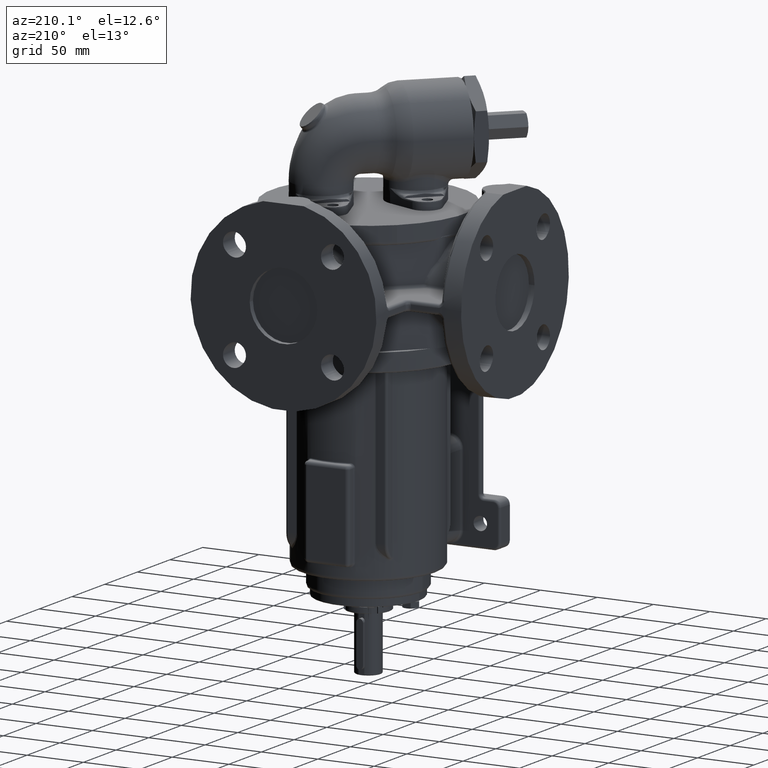
[diagram: clean part render]
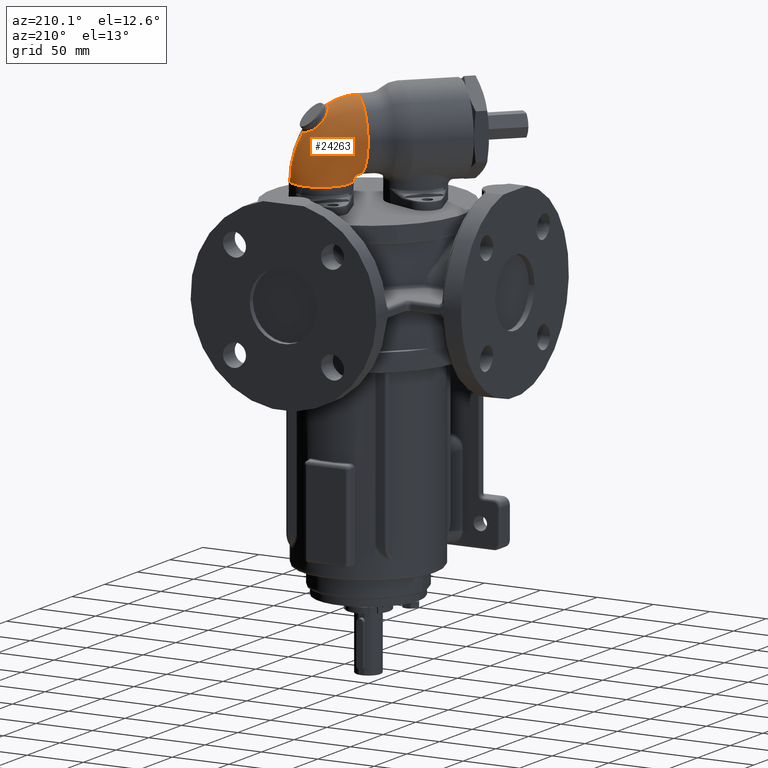
[diagram: same view with one face highlighted and labeled with its STEP entity id]
A machine part, auxiliary view. The second image highlights one B-rep face of the part: STEP entity #24263.
In plain terms, the highlighted face is a freeform B-spline surface patch.
Its self-contained STEP definition (entity closure, byte-faithful):
#3086=CARTESIAN_POINT('',(3.688014420872E1,3.688014375132E1,1.648450879329E2));
#3087=CARTESIAN_POINT('',(3.718151890918E1,3.718151845178E1,1.641295530669E2));
#3088=CARTESIAN_POINT('',(3.818970341616E1,3.818970395164E1,1.616318557733E2));
#3089=CARTESIAN_POINT('',(3.973962154826E1,3.973962135709E1,1.571622028E2));
#3090=CARTESIAN_POINT('',(4.134432181748E1,4.134432186871E1,1.512977116788E2));
#3091=CARTESIAN_POINT('',(4.260873733230E1,4.260873731857E1,1.451895897013E2));
#3092=CARTESIAN_POINT('',(4.352069088406E1,4.352069088776E1,1.388966617087E2));
#3093=CARTESIAN_POINT('',(4.407139991414E1,4.407139991308E1,1.324795309822E2));
#3094=CARTESIAN_POINT('',(4.419417382416E1,4.419417382416E1,1.281598449493E2));
#3095=CARTESIAN_POINT('',(4.419417382416E1,4.419417382416E1,1.26E2));
#3097=CARTESIAN_POINT('',(6.010407640086E0,6.010407640086E0,1.3E2));
#3098=CARTESIAN_POINT('',(6.102967701297E0,6.102967701297E0,1.3E2));
#3099=CARTESIAN_POINT('',(6.288086493804E0,6.288086493804E0,1.299871076123E2));
#3100=CARTESIAN_POINT('',(6.563095470911E0,6.563095470911E0,1.299294634535E2));
#3101=CARTESIAN_POINT('',(6.832770014463E0,6.832770014463E0,1.298338853033E2));
#3102=CARTESIAN_POINT('',(7.094544215593E0,7.094544215593E0,1.297014736369E2));
#3103=CARTESIAN_POINT('',(7.345852165434E0,7.345852165434E0,1.295333289293E2));
#3104=CARTESIAN_POINT('',(7.584329915053E0,7.584329915053E0,1.293312382622E2));
#3105=CARTESIAN_POINT('',(7.807613515515E0,7.807613515515E0,1.290969887173E2));
#3106=CARTESIAN_POINT('',(7.979294536264E0,7.979294536264E0,1.288769858503E2));
#3107=CARTESIAN_POINT('',(8.106970051879E0,8.106970051879E0,1.286873091002E2));
#3108=CARTESIAN_POINT('',(8.227915936955E0,8.227915936955E0,1.284890044741E2));
#3109=CARTESIAN_POINT('',(8.365948805015E0,8.365948805015E0,1.282258622274E2));
#3110=CARTESIAN_POINT('',(8.508848486143E0,8.508848486143E0,1.278886037595E2));
#3111=CARTESIAN_POINT('',(8.627744749128E0,8.627744749128E0,1.275332006485E2));
#3112=CARTESIAN_POINT('',(8.721373936375E0,8.721373936375E0,1.271629960230E2));
#3113=CARTESIAN_POINT('',(8.788957894486E0,8.788957894486E0,1.267816186261E2));
#3114=CARTESIAN_POINT('',(8.829718470062E0,8.829718470062E0,1.263926972009E2));
#3115=CARTESIAN_POINT('',(8.838834764832E0,8.838834764832E0,1.261308996939E2));
#3116=CARTESIAN_POINT('',(8.838834764832E0,8.838834764832E0,1.26E2));
#3118=CARTESIAN_POINT('',(6.010407640086E0,6.010407640086E0,1.92E2));
#3119=CARTESIAN_POINT('',(7.259968466443E0,7.259968466443E0,1.92E2));
#3120=CARTESIAN_POINT('',(9.759087874151E0,9.759087890836E0,1.917877873530E2));
#3121=CARTESIAN_POINT('',(1.347166699157E1,1.347166693318E1,1.908358960265E2));
#3122=CARTESIAN_POINT('',(1.711238944391E1,1.711238966081E1,1.892595995805E2));
#3123=CARTESIAN_POINT('',(2.032549445101E1,2.032549373492E1,1.872724191259E2));
#3124=CARTESIAN_POINT('',(2.229053792831E1,2.229053903684E1,1.857211180602E2));
#3125=CARTESIAN_POINT('',(2.310369480530E1,2.310369591383E1,1.850174921909E2));
#3137=CARTESIAN_POINT('',(3.688014420872E1,3.688014375132E1,1.648450879329E2));
#3138=CARTESIAN_POINT('',(3.629558669525E1,3.746469983136E1,1.648450883895E2));
#3139=CARTESIAN_POINT('',(3.503853734649E1,3.853037218919E1,1.649299786739E2));
#3140=CARTESIAN_POINT('',(3.289507899265E1,3.981454662903E1,1.653220779828E2));
#3141=CARTESIAN_POINT('',(3.057469333928E1,4.073006997885E1,1.659884721649E2));
#3142=CARTESIAN_POINT('',(2.814707956007E1,4.124122399694E1,1.669494611051E2));
#3143=CARTESIAN_POINT('',(2.584934710970E1,4.132740639354E1,1.681378742865E2));
#3144=CARTESIAN_POINT('',(2.374096266716E1,4.104519894648E1,1.695269714033E2));
#3145=CARTESIAN_POINT('',(2.187444741216E1,4.043264262487E1,1.710942008457E2));
#3146=CARTESIAN_POINT('',(2.029194492241E1,3.951817611635E1,1.728165801911E2));
#3147=CARTESIAN_POINT('',(1.903631801528E1,3.832210185362E1,1.746591884853E2));
#3148=CARTESIAN_POINT('',(1.814886657028E1,3.686231203091E1,1.765705932705E2));
#3149=CARTESIAN_POINT('',(1.766550437511E1,3.516333899863E1,1.784794122976E2));
#3150=CARTESIAN_POINT('',(1.761054859925E1,3.324910878572E1,1.803086844192E2));
#3151=CARTESIAN_POINT('',(1.799792906580E1,3.117999334560E1,1.819496782428E2));
#3152=CARTESIAN_POINT('',(1.878922742330E1,2.906801668756E1,1.832868962284E2));
#3153=CARTESIAN_POINT('',(1.993533151915E1,2.696996511928E1,1.842766839624E2));
#3154=CARTESIAN_POINT('',(2.138408473821E1,2.494983416128E1,1.848817726805E2));
#3155=CARTESIAN_POINT('',(2.250574362079E1,2.370164917245E1,1.850174895904E2));
#3156=CARTESIAN_POINT('',(2.310369480530E1,2.310369591383E1,1.850174921909E2));
#3158=CARTESIAN_POINT('',(6.010411611603E0,6.010411611603E0,1.61E2));
#3159=DIRECTION('',(-7.071067811865E-1,-7.071067811865E-1,0.E0));
#3160=DIRECTION('',(0.E0,0.E0,1.E0));
#3161=AXIS2_PLACEMENT_3D('',#3158,#3159,#3160);
#3180=CARTESIAN_POINT('',(2.651650429450E1,2.651650429450E1,1.26E2));
#3181=DIRECTION('',(0.E0,0.E0,1.E0));
#3182=DIRECTION('',(7.071067811865E-1,7.071067811865E-1,0.E0));
#3183=AXIS2_PLACEMENT_3D('',#3180,#3181,#3182);
#13602=VERTEX_POINT('',#3097);
#13603=VERTEX_POINT('',#3116);
#13606=CARTESIAN_POINT('',(4.419417382416E1,4.419417382416E1,1.26E2));
#13608=VERTEX_POINT('',#13606);
#13624=CARTESIAN_POINT('',(6.010411611603E0,6.010411611603E0,1.92E2));
#13625=VERTEX_POINT('',#13624);
#13638=VERTEX_POINT('',#3137);
#13639=VERTEX_POINT('',#3156);
#23552=CARTESIAN_POINT('',(5.296961286770E0,3.945950296364E0,1.919415101204E2));
#23553=CARTESIAN_POINT('',(4.357379418099E0,4.898731408612E0,1.919832593682E2));
#23554=CARTESIAN_POINT('',(2.703438354027E0,6.578818993700E0,1.919035872517E2));
#23555=CARTESIAN_POINT('',(3.715233855854E-1,8.956016431584E0,
1.914091653033E2));
#23556=CARTESIAN_POINT('',(-1.691899834636E0,1.106698996291E1,
1.906694875452E2));
#23557=CARTESIAN_POINT('',(-3.687972552285E0,1.311740331751E1,
1.896460275965E2));
#23558=CARTESIAN_POINT('',(-5.598531039292E0,1.508930026452E1,
1.883489084658E2));
#23559=CARTESIAN_POINT('',(-7.406126363911E0,1.696519926596E1,
1.867902950015E2));
#23560=CARTESIAN_POINT('',(-9.094043955059E0,1.872825555107E1,
1.849844028428E2));
#23561=CARTESIAN_POINT('',(-1.064644773001E1,2.036225979111E1,
1.829475677080E2));
#23562=CARTESIAN_POINT('',(-1.204846334093E1,2.185188043152E1,
1.806982431962E2));
#23563=CARTESIAN_POINT('',(-1.328637149589E1,2.318275187021E1,
1.782570408089E2));
#23564=CARTESIAN_POINT('',(-1.434775320240E1,2.434176723580E1,
1.756466421268E2));
#23565=CARTESIAN_POINT('',(-1.522171816179E1,2.531722712074E1,
1.728917335954E2));
#23566=CARTESIAN_POINT('',(-1.589907844233E1,2.609912584323E1,
1.700187866035E2));
#23567=CARTESIAN_POINT('',(-1.637256730063E1,2.667930772018E1,
1.670558451311E2));
#23568=CARTESIAN_POINT('',(-1.663698795318E1,2.705168499941E1,
1.640321745211E2));
#23569=CARTESIAN_POINT('',(-1.668936314934E1,2.721234707573E1,
1.609779102423E2));
#23570=CARTESIAN_POINT('',(-1.652900603728E1,2.715966654094E1,
1.579236245492E2));
#23571=CARTESIAN_POINT('',(-1.615754809780E1,2.689432618304E1,
1.548998921443E2));
#23572=CARTESIAN_POINT('',(-1.557890038906E1,2.641930280849E1,
1.519368554281E2));
#23573=CARTESIAN_POINT('',(-1.479913663682E1,2.573980723598E1,
1.490637903900E2));
#23574=CARTESIAN_POINT('',(-1.382634955921E1,2.486316918263E1,
1.463087539089E2));
#23575=CARTESIAN_POINT('',(-1.267041044751E1,2.379871097948E1,
1.436982307503E2));
#23576=CARTESIAN_POINT('',(-1.134276819681E1,2.255757344642E1,
1.412569190105E2));
#23577=CARTESIAN_POINT('',(-9.856157459940E0,2.115254780328E1,
1.390075077511E2));
#23578=CARTESIAN_POINT('',(-8.224427512210E0,1.959786967752E1,
1.369706092370E2));
#23579=CARTESIAN_POINT('',(-6.462310087385E0,1.790901324656E1,
1.351646689571E2));
#23580=CARTESIAN_POINT('',(-4.585377250208E0,1.610245186589E1,
1.336060044711E2));
#23581=CARTESIAN_POINT('',(-2.609974569709E0,1.419539931710E1,
1.323088048663E2));
#23582=CARTESIAN_POINT('',(-5.533835046526E-1,1.220550461994E1,
1.312852051470E2));
#23583=CARTESIAN_POINT('',(1.565952604613E0,1.015044440175E1,1.305453071533E2));
#23584=CARTESIAN_POINT('',(3.951325824607E0,7.829872472765E0,1.300508936581E2));
#23585=CARTESIAN_POINT('',(5.633322225549E0,6.181097136860E0,1.299708176569E2));
#23586=CARTESIAN_POINT('',(6.582745889940E0,5.241370565847E0,1.300121487626E2));
#23587=CARTESIAN_POINT('',(7.009136174242E0,5.666735183369E0,1.920499035728E2));
#23588=CARTESIAN_POINT('',(6.067169581482E0,6.603919412796E0,1.920899875594E2));
#23589=CARTESIAN_POINT('',(4.403098995702E0,8.259274779760E0,1.920096673333E2));
#23590=CARTESIAN_POINT('',(2.043517612298E0,1.060555829433E1,1.915148322264E2));
#23591=CARTESIAN_POINT('',(-5.384093584801E-2,1.269011392663E1,
1.907729538370E2));
#23592=CARTESIAN_POINT('',(-2.091040335786E0,1.471362926608E1,
1.897442038349E2));
#23593=CARTESIAN_POINT('',(-4.048231015866E0,1.665610500682E1,
1.884383892433E2));
#23594=CARTESIAN_POINT('',(-5.906364709880E0,1.849838109952E1,
1.868681567155E2));
#23595=CARTESIAN_POINT('',(-7.647414837027E0,2.022232504448E1,
1.850488379665E2));
#23596=CARTESIAN_POINT('',(-9.254547075379E0,2.181105780048E1,
1.829982395275E2));
#23597=CARTESIAN_POINT('',(-1.071229862352E1,2.324909699737E1,
1.807364300680E2));
#23598=CARTESIAN_POINT('',(-1.200670802090E1,2.452253000581E1,
1.782854817029E2));
#23599=CARTESIAN_POINT('',(-1.312544717084E1,2.561910989299E1,
1.756692283484E2));
#23600=CARTESIAN_POINT('',(-1.405790847467E1,2.652837381584E1,
1.729129894937E2));
#23601=CARTESIAN_POINT('',(-1.479529237493E1,2.724169858402E1,
1.700433228594E2));
#23602=CARTESIAN_POINT('',(-1.533065824978E1,2.775237088470E1,
1.670877538285E2));
#23603=CARTESIAN_POINT('',(-1.565897587693E1,2.805561310213E1,
1.640745341252E2));
#23604=CARTESIAN_POINT('',(-1.577715098705E1,2.814861503855E1,
1.610323875177E2));
#23605=CARTESIAN_POINT('',(-1.568404980315E1,2.803053868778E1,
1.579902739391E2));
#23606=CARTESIAN_POINT('',(-1.538050915047E1,2.770251901922E1,
1.549771496510E2));
#23607=CARTESIAN_POINT('',(-1.486933910160E1,2.716765043876E1,
1.520217280257E2));
#23608=CARTESIAN_POINT('',(-1.415532137082E1,2.643095908162E1,
1.491522448204E2));
#23609=CARTESIAN_POINT('',(-1.324518764485E1,2.549936720719E1,
1.463962060731E2));
#23610=CARTESIAN_POINT('',(-1.214760032280E1,2.438163517561E1,
1.437801494424E2));
#23611=CARTESIAN_POINT('',(-1.087309532929E1,2.308829751543E1,
1.413293769445E2));
#23612=CARTESIAN_POINT('',(-9.434028180402E0,2.163157375149E1,
1.390677112759E2));
#23613=CARTESIAN_POINT('',(-7.844462125167E0,2.002527473611E1,
1.370172234068E2));
#23614=CARTESIAN_POINT('',(-6.120054508651E0,1.828468830721E1,
1.351979941697E2));
#23615=CARTESIAN_POINT('',(-4.277870269180E0,1.642646290107E1,
1.336278573294E2));
#23616=CARTESIAN_POINT('',(-2.336187530750E0,1.446847948561E1,
1.323221844220E2));
#23617=CARTESIAN_POINT('',(-3.142247128783E-1,1.242972796832E1,
1.312936668597E2));
#23618=CARTESIAN_POINT('',(1.768160961571E0,1.033020001528E1,1.305521434127E2));
#23619=CARTESIAN_POINT('',(4.110334734524E0,7.969674147170E0,1.300581562172E2));
#23620=CARTESIAN_POINT('',(5.763284603126E0,6.306429201739E0,1.299780178912E2));
#23621=CARTESIAN_POINT('',(6.699536398283E0,5.366703915960E0,1.300178353973E2));
#23622=CARTESIAN_POINT('',(9.975873063500E0,8.646979799666E0,1.918896807748E2));
#23623=CARTESIAN_POINT('',(9.034107859858E0,9.563658121978E0,1.919310697815E2));
#23624=CARTESIAN_POINT('',(7.359623597710E0,1.118559125496E1,1.918562693907E2));
#23625=CARTESIAN_POINT('',(4.960848788984E0,1.348658277590E1,1.913700084787E2));
#23626=CARTESIAN_POINT('',(2.811392424469E0,1.552898002799E1,1.906332569788E2));
#23627=CARTESIAN_POINT('',(7.084135655422E-1,1.750604007102E1,
1.896052443767E2));
#23628=CARTESIAN_POINT('',(-1.325239571900E0,1.939480449320E1,
1.882953876474E2));
#23629=CARTESIAN_POINT('',(-3.267626348206E0,2.117386487429E1,
1.867171096236E2));
#23630=CARTESIAN_POINT('',(-5.098269648996E0,2.282357390417E1,
1.848874214098E2));
#23631=CARTESIAN_POINT('',(-6.798420320389E0,2.432657529292E1,
1.828263215805E2));
#23632=CARTESIAN_POINT('',(-8.351399346754E0,2.566776189517E1,
1.805562522604E2));
#23633=CARTESIAN_POINT('',(-9.742667297678E0,2.683452462309E1,
1.781014189513E2));
#23634=CARTESIAN_POINT('',(-1.095993061278E1,2.781651266345E1,
1.754873055805E2));
#23635=CARTESIAN_POINT('',(-1.199302393149E1,2.860565756721E1,
1.727401050704E2));
#23636=CARTESIAN_POINT('',(-1.283383817920E1,2.919585431533E1,
1.698864220496E2));
#23637=CARTESIAN_POINT('',(-1.347610053463E1,2.958287256936E1,
1.669529336189E2));
#23638=CARTESIAN_POINT('',(-1.391523515071E1,2.976408864515E1,
1.639663078158E2));
#23639=CARTESIAN_POINT('',(-1.414816824599E1,2.973839946811E1,
1.609531064897E2));
#23640=CARTESIAN_POINT('',(-1.417323937605E1,2.950609409978E1,
1.579398432228E2));
#23641=CARTESIAN_POINT('',(-1.399015055864E1,2.906884167843E1,
1.549530376236E2));
#23642=CARTESIAN_POINT('',(-1.360000378373E1,2.842971684322E1,
1.520192686080E2));
#23643=CARTESIAN_POINT('',(-1.300545299750E1,2.759326495236E1,
1.491652304241E2));
#23644=CARTESIAN_POINT('',(-1.221086474807E1,2.656562239055E1,
1.464176319295E2));
#23645=CARTESIAN_POINT('',(-1.122263489411E1,2.535460716590E1,
1.438031106860E2));
#23646=CARTESIAN_POINT('',(-1.004937411810E1,2.396984217869E1,
1.413478882999E2));
#23647=CARTESIAN_POINT('',(-8.702238949611E0,2.242281504605E1,
1.390774671164E2));
#23648=CARTESIAN_POINT('',(-7.194956174437E0,2.072694727357E1,
1.370160545162E2));
#23649=CARTESIAN_POINT('',(-5.543931393076E0,1.889761919489E1,
1.351860726576E2));
#23650=CARTESIAN_POINT('',(-3.767900411782E0,1.695220022067E1,
1.336074754088E2));
#23651=CARTESIAN_POINT('',(-1.887591164424E0,1.491008661467E1,
1.322972085043E2));
#23652=CARTESIAN_POINT('',(7.515487886836E-2,1.279278573977E1,
1.312686213018E2));
#23653=CARTESIAN_POINT('',(2.098433959266E0,1.062420023798E1,1.305310786601E2));
#23654=CARTESIAN_POINT('',(4.375517179715E0,8.204661894040E0,1.300440519952E2));
#23655=CARTESIAN_POINT('',(5.987290560347E0,6.523194191680E0,1.299682923793E2));
#23656=CARTESIAN_POINT('',(6.905665577203E0,5.586228960202E0,1.300090662267E2));
#23657=CARTESIAN_POINT('',(1.413988588495E1,1.282749401602E1,1.908174952261E2));
#23658=CARTESIAN_POINT('',(1.320811160714E1,1.372899233239E1,1.908626623305E2));
#23659=CARTESIAN_POINT('',(1.153510230278E1,1.532360668395E1,1.907990792056E2));
#23660=CARTESIAN_POINT('',(9.101317518836E0,1.757813817712E1,1.903330273477E2));
#23661=CARTESIAN_POINT('',(6.894300031429E0,1.956883846983E1,1.896146653962E2));
#23662=CARTESIAN_POINT('',(4.711932480358E0,2.148106224247E1,1.886034016390E2));
#23663=CARTESIAN_POINT('',(2.581355546411E0,2.328892927919E1,1.873082592288E2));
#23664=CARTESIAN_POINT('',(5.287429577971E-1,2.496923896995E1,
1.857434544640E2));
#23665=CARTESIAN_POINT('',(-1.421692261065E0,2.650166978660E1,
1.839276564862E2));
#23666=CARTESIAN_POINT('',(-3.248182188818E0,2.786955696422E1,
1.818830275166E2));
#23667=CARTESIAN_POINT('',(-4.931963702760E0,2.905957072330E1,
1.796342874444E2));
#23668=CARTESIAN_POINT('',(-6.457359068894E0,3.006193431594E1,
1.772076366792E2));
#23669=CARTESIAN_POINT('',(-7.811841735644E0,3.086973252323E1,
1.746299812840E2));
#23670=CARTESIAN_POINT('',(-8.985713056921E0,3.147872684316E1,
1.719280981563E2));
#23671=CARTESIAN_POINT('',(-9.971792218433E0,3.188656925411E1,
1.691282651001E2));
#23672=CARTESIAN_POINT('',(-1.076486212032E1,3.209247591513E1,
1.662558887815E2));
#23673=CARTESIAN_POINT('',(-1.136122645470E1,3.209662873816E1,
1.633355854683E2));
#23674=CARTESIAN_POINT('',(-1.175820166342E1,3.189995832200E1,
1.603912801543E2));
#23675=CARTESIAN_POINT('',(-1.195381053166E1,3.150391183627E1,
1.574465774933E2));
#23676=CARTESIAN_POINT('',(-1.194659097460E1,3.091048452409E1,
1.545251398884E2));
#23677=CARTESIAN_POINT('',(-1.173561213361E1,3.012236331651E1,
1.516510558607E2));
#23678=CARTESIAN_POINT('',(-1.132075046292E1,2.914318926832E1,
1.488491928299E2));
#23679=CARTESIAN_POINT('',(-1.070304631804E1,2.797792607791E1,
1.461452617541E2));
#23680=CARTESIAN_POINT('',(-9.885393431433E0,2.663321196182E1,
1.435658560059E2));
#23681=CARTESIAN_POINT('',(-8.873046184645E0,2.511773279968E1,
1.411380273301E2));
#23682=CARTESIAN_POINT('',(-7.674428454448E0,2.344250959828E1,
1.388888582693E2));
#23683=CARTESIAN_POINT('',(-6.301409129519E0,2.162113106395E1,
1.368445672390E2));
#23684=CARTESIAN_POINT('',(-4.769748190783E0,1.966993323104E1,
1.350296828083E2));
#23685=CARTESIAN_POINT('',(-3.098692209154E0,1.760810532799E1,
1.334659388240E2));
#23686=CARTESIAN_POINT('',(-1.310585515555E0,1.545784068955E1,
1.321713780516E2));
#23687=CARTESIAN_POINT('',(5.705596006606E-1,1.324450447769E1,
1.311595127512E2));
#23688=CARTESIAN_POINT('',(2.520833617286E0,1.099721117993E1,1.304388667006E2));
#23689=CARTESIAN_POINT('',(4.726472985393E0,8.517901049853E0,1.299689346848E2));
#23690=CARTESIAN_POINT('',(6.299277341172E0,6.826415186533E0,1.299024493668E2));
#23691=CARTESIAN_POINT('',(7.202827276194E0,5.899854944944E0,1.299475601396E2));
#23692=CARTESIAN_POINT('',(1.777139876442E1,1.647233921417E1,1.892398864829E2));
#23693=CARTESIAN_POINT('',(1.685447933930E1,1.736853094449E1,1.892862574408E2));
#23694=CARTESIAN_POINT('',(1.519307043862E1,1.895049480746E1,1.892296305467E2));
#23695=CARTESIAN_POINT('',(1.274187368748E1,2.117359333247E1,1.887812323900E2));
#23696=CARTESIAN_POINT('',(1.049508729828E1,2.312242746346E1,1.880828916378E2));
#23697=CARTESIAN_POINT('',(8.252353652129E0,2.497694703467E1,1.870945700871E2));
#23698=CARTESIAN_POINT('',(6.044543671438E0,2.670954487358E1,1.858249592203E2));
#23699=CARTESIAN_POINT('',(3.901569138029E0,2.829634588981E1,1.842886773532E2));
#23700=CARTESIAN_POINT('',(1.851034289926E0,2.971736927486E1,1.825052818110E2));
#23701=CARTESIAN_POINT('',(-8.249193992949E-2,3.095740725357E1,
1.804981192485E2));
#23702=CARTESIAN_POINT('',(-1.878215228141E0,3.200545071640E1,
1.782931006094E2));
#23703=CARTESIAN_POINT('',(-3.519265660940E0,3.285479532810E1,
1.759174049123E2));
#23704=CARTESIAN_POINT('',(-4.992726283095E0,3.350197475642E1,
1.733984883180E2));
#23705=CARTESIAN_POINT('',(-6.289184614583E0,3.394634904769E1,
1.707631129949E2));
#23706=CARTESIAN_POINT('',(-7.402209776172E0,3.418895384061E1,
1.680369137975E2));
#23707=CARTESIAN_POINT('',(-8.327540957969E0,3.423196124746E1,
1.652440380155E2));
#23708=CARTESIAN_POINT('',(-9.062362222604E0,3.407784890128E1,
1.624073271724E2));
#23709=CARTESIAN_POINT('',(-9.604524072048E0,3.372909158425E1,
1.595485697039E2));
#23710=CARTESIAN_POINT('',(-9.952014327443E0,3.318789175465E1,
1.566890789671E2));
#23711=CARTESIAN_POINT('',(-1.010261294682E1,3.245628632444E1,
1.538502940514E2));
#23712=CARTESIAN_POINT('',(-1.005384638956E1,3.153643069953E1,
1.510543594266E2));
#23713=CARTESIAN_POINT('',(-9.803313570744E0,3.043107141854E1,
1.483246634284E2));
#23714=CARTESIAN_POINT('',(-9.349173452961E0,2.914414536595E1,
1.456860158556E2));
#23715=CARTESIAN_POINT('',(-8.691092952440E0,2.768138801545E1,
1.431647386229E2));
#23716=CARTESIAN_POINT('',(-7.831018521623E0,2.605091249774E1,
1.407881923009E2));
#23717=CARTESIAN_POINT('',(-6.774355977977E0,2.426370343223E1,
1.385842172842E2));
#23718=CARTESIAN_POINT('',(-5.530498640809E0,2.233394889805E1,
1.365800317942E2));
#23719=CARTESIAN_POINT('',(-4.113578851359E0,2.027932713632E1,
1.348011302298E2));
#23720=CARTESIAN_POINT('',(-2.542122356466E0,1.812109625772E1,
1.332699265824E2));
#23721=CARTESIAN_POINT('',(-8.387098822460E-1,1.588426773207E1,
1.320046144215E2));
#23722=CARTESIAN_POINT('',(9.717392826283E-1,1.359771629231E1,
1.310182792200E2));
#23723=CARTESIAN_POINT('',(2.864147797144E0,1.129484984179E1,1.303185252139E2));
#23724=CARTESIAN_POINT('',(5.019548043982E0,8.779589770921E0,1.298655169741E2));
#23725=CARTESIAN_POINT('',(6.569898009127E0,7.090110725288E0,1.298059730240E2));
#23726=CARTESIAN_POINT('',(7.466765031230E0,6.177132364377E0,1.298545211559E2));
#23727=CARTESIAN_POINT('',(2.129301361518E1,2.000671207040E1,1.870560240407E2));
#23728=CARTESIAN_POINT('',(2.039508647406E1,2.090286344839E1,1.870992550410E2));
#23729=CARTESIAN_POINT('',(1.875284961040E1,2.247930820646E1,1.870432337371E2));
#23730=CARTESIAN_POINT('',(1.629530940188E1,2.467613940140E1,1.866083875457E2));
#23731=CARTESIAN_POINT('',(1.401866709045E1,2.658432173924E1,1.859309292357E2));
#23732=CARTESIAN_POINT('',(1.172508760492E1,2.837953412553E1,1.849712952366E2));
#23733=CARTESIAN_POINT('',(9.448956443415E0,3.003321303362E1,1.837377908406E2));
#23734=CARTESIAN_POINT('',(7.223760177682E0,3.152158348169E1,1.822450890631E2));
#23735=CARTESIAN_POINT('',(5.080424112415E0,3.282576328300E1,1.805130363768E2));
#23736=CARTESIAN_POINT('',(3.046311150064E0,3.393264248111E1,1.785654248733E2));
#23737=CARTESIAN_POINT('',(1.144320369634E0,3.483406220516E1,1.764285357067E2));
#23738=CARTESIAN_POINT('',(-6.073776558469E-1,3.552674419690E1,
1.741297404780E2));
#23739=CARTESIAN_POINT('',(-2.195332703194E0,3.601088331473E1,
1.716963362311E2));
#23740=CARTESIAN_POINT('',(-3.610292571244E0,3.628948369790E1,
1.691545240553E2));
#23741=CARTESIAN_POINT('',(-4.846474484845E0,3.636689744842E1,
1.665289161454E2));
#23742=CARTESIAN_POINT('',(-5.900537778182E0,3.624807870743E1,
1.638422206320E2));
#23743=CARTESIAN_POINT('',(-6.770576945547E0,3.593757776103E1,
1.611154863946E2));
#23744=CARTESIAN_POINT('',(-7.455089374904E0,3.543916467677E1,
1.583684874177E2));
#23745=CARTESIAN_POINT('',(-7.952208266828E0,3.475556780441E1,
1.556204433723E2));
#23746=CARTESIAN_POINT('',(-8.259185754754E0,3.388868233445E1,
1.528907829964E2));
#23747=CARTESIAN_POINT('',(-8.372253566849E0,3.284001795748E1,
1.501998722841E2));
#23748=CARTESIAN_POINT('',(-8.286948469144E0,3.161140200132E1,
1.475696693498E2));
#23749=CARTESIAN_POINT('',(-7.998691528503E0,3.020580879807E1,
1.450239839375E2));
#23750=CARTESIAN_POINT('',(-7.503926412604E0,2.862823422744E1,
1.425885706796E2));
#23751=CARTESIAN_POINT('',(-6.801128491380E0,2.688645985569E1,
1.402906256828E2));
#23752=CARTESIAN_POINT('',(-5.892299035E0,2.499174865169E1,1.381580848918E2));
#23753=CARTESIAN_POINT('',(-4.783760956162E0,2.295923540829E1,
1.362183850932E2));
#23754=CARTESIAN_POINT('',(-3.487209402512E0,2.080829180198E1,
1.344971148146E2));
#23755=CARTESIAN_POINT('',(-2.019511077150E0,1.856253286282E1,
1.330165153232E2));
#23756=CARTESIAN_POINT('',(-4.024919869851E-1,1.624994894959E1,
1.317941654519E2));
#23757=CARTESIAN_POINT('',(1.338890333740E0,1.390285295589E1,1.308421894188E2));
#23758=CARTESIAN_POINT('',(3.178936052122E0,1.155850294783E1,1.301670846530E2));
#23759=CARTESIAN_POINT('',(5.294291473217E0,9.023227156452E0,1.297299380515E2));
#23760=CARTESIAN_POINT('',(6.831336097145E0,7.345205555921E0,1.296734016995E2));
#23761=CARTESIAN_POINT('',(7.726190936796E0,6.449266393325E0,1.297229801644E2));
#23762=CARTESIAN_POINT('',(2.467203955676E1,2.339867501148E1,1.842874379296E2));
#23763=CARTESIAN_POINT('',(2.379529268166E1,2.429702771176E1,1.843224767648E2));
#23764=CARTESIAN_POINT('',(2.217688728488E1,2.587042208105E1,1.842597156143E2));
#23765=CARTESIAN_POINT('',(1.972116402850E1,2.804126293310E1,1.838332440033E2));
#23766=CARTESIAN_POINT('',(1.742286088145E1,2.990698721075E1,1.831767018996E2));
#23767=CARTESIAN_POINT('',(1.508705132799E1,3.163962472931E1,1.822507318448E2));
#23768=CARTESIAN_POINT('',(1.275129207944E1,3.321031887214E1,1.810631551753E2));
#23769=CARTESIAN_POINT('',(1.045234525932E1,3.459601932561E1,1.796283397075E2));
#23770=CARTESIAN_POINT('',(8.224248390706E0,3.577951394359E1,1.779658413680E2));
#23771=CARTESIAN_POINT('',(6.097027371206E0,3.675022763711E1,1.760991920121E2));
#23772=CARTESIAN_POINT('',(4.095653852056E0,3.750316944580E1,1.740542686223E2));
#23773=CARTESIAN_POINT('',(2.239633616631E0,3.803864064890E1,1.718578912289E2));
#23774=CARTESIAN_POINT('',(5.430491702623E-1,3.836052869395E1,
1.695365257505E2));
#23775=CARTESIAN_POINT('',(-9.848889472045E-1,3.847538115968E1,
1.671152844514E2));
#23776=CARTESIAN_POINT('',(-2.338922747157E0,3.839069040874E1,
1.646173796548E2));
#23777=CARTESIAN_POINT('',(-3.516546895934E0,3.811395419463E1,
1.620638792166E2));
#23778=CARTESIAN_POINT('',(-4.516732969892E0,3.765154833128E1,
1.594739817002E2));
#23779=CARTESIAN_POINT('',(-5.338668050412E0,3.700830361061E1,
1.568655098342E2));
#23780=CARTESIAN_POINT('',(-5.980748082925E0,3.618728801314E1,
1.542557162967E2));
#23781=CARTESIAN_POINT('',(-6.439882855386E0,3.519013357197E1,
1.516621549389E2));
#23782=CARTESIAN_POINT('',(-6.711241680992E0,3.401765884758E1,
1.491035013152E2));
#23783=CARTESIAN_POINT('',(-6.788538204389E0,3.267080855203E1,
1.466002637950E2));
#23784=CARTESIAN_POINT('',(-6.664666133806E0,3.115170230426E1,
1.441750971744E2));
#23785=CARTESIAN_POINT('',(-6.332965340074E0,2.946477160639E1,
1.418528595256E2));
#23786=CARTESIAN_POINT('',(-5.788437074460E0,2.761768391526E1,
1.396600964947E2));
#23787=CARTESIAN_POINT('',(-5.029493775932E0,2.562222759669E1,
1.376241943749E2));
#23788=CARTESIAN_POINT('',(-4.059023353466E0,2.349472499284E1,
1.357720671001E2));
#23789=CARTESIAN_POINT('',(-2.885721202830E0,2.125644906653E1,
1.341285938834E2));
#23790=CARTESIAN_POINT('',(-1.524097912977E0,1.893349596240E1,
1.327150725252E2));
#23791=CARTESIAN_POINT('',(5.550861633299E-3,1.655682544217E1,
1.315477922820E2));
#23792=CARTESIAN_POINT('',(1.678937204331E0,1.416196777332E1,1.306374492765E2));
#23793=CARTESIAN_POINT('',(3.470207583654E0,1.178948849936E1,1.299892605107E2));
#23794=CARTESIAN_POINT('',(5.552159979099E0,9.248383193087E0,1.295652221711E2));
#23795=CARTESIAN_POINT('',(7.081639222831E0,7.589453154667E0,1.295062505873E2));
#23796=CARTESIAN_POINT('',(7.977108607324E0,6.712939274563E0,1.295532248856E2));
#23797=CARTESIAN_POINT('',(2.787701995565E1,2.661735642885E1,1.809604600458E2));
#23798=CARTESIAN_POINT('',(2.702186875750E1,2.751754323513E1,1.809827864718E2));
#23799=CARTESIAN_POINT('',(2.542932340711E1,2.908637223076E1,1.809068900333E2));
#23800=CARTESIAN_POINT('',(2.298100107279E1,3.122745582836E1,1.804847637736E2));
#23801=CARTESIAN_POINT('',(2.066776181916E1,3.304656428491E1,1.798499451506E2));
#23802=CARTESIAN_POINT('',(1.829763122679E1,3.471227194185E1,1.789630615224E2));
#23803=CARTESIAN_POINT('',(1.591086921672E1,3.619598921285E1,1.778313364175E2));
#23804=CARTESIAN_POINT('',(1.354708130713E1,3.747586917740E1,1.764684871335E2));
#23805=CARTESIAN_POINT('',(1.124307274536E1,3.853675886025E1,1.748932458591E2));
#23806=CARTESIAN_POINT('',(9.031280573063E0,3.937085550301E1,1.731282390215E2));
#23807=CARTESIAN_POINT('',(6.938614147581E0,3.997644602540E1,1.711982386725E2));
#23808=CARTESIAN_POINT('',(4.985878140862E0,4.035736869539E1,1.691288381508E2));
#23809=CARTESIAN_POINT('',(3.187845559983E0,4.052105823727E1,1.669450646060E2));
#23810=CARTESIAN_POINT('',(1.553799686902E0,4.047736301237E1,1.646704594957E2));
#23811=CARTESIAN_POINT('',(8.862158330099E-2,4.023663463039E1,
1.623264877158E2));
#23812=CARTESIAN_POINT('',(-1.205882215803E0,3.980861574310E1,
1.599323815604E2));
#23813=CARTESIAN_POINT('',(-2.329460552973E0,3.920124070441E1,
1.575054189883E2));
#23814=CARTESIAN_POINT('',(-3.281959936437E0,3.842018500137E1,
1.550615029177E2));
#23815=CARTESIAN_POINT('',(-4.062090388337E0,3.746871731555E1,
1.526160019673E2));
#23816=CARTESIAN_POINT('',(-4.666557121310E0,3.634815123576E1,
1.501846802283E2));
#23817=CARTESIAN_POINT('',(-5.089680659729E0,3.505864174752E1,
1.477845604702E2));
#23818=CARTESIAN_POINT('',(-5.323611136599E0,3.360035302649E1,
1.454346405671E2));
#23819=CARTESIAN_POINT('',(-5.358989422949E0,3.197470559006E1,
1.431562366348E2));
#23820=CARTESIAN_POINT('',(-5.186283872939E0,3.018575804123E1,
1.409729746137E2));
#23821=CARTESIAN_POINT('',(-4.797175644762E0,2.824126164756E1,
1.389102781447E2));
#23822=CARTESIAN_POINT('',(-4.186503210823E0,2.615371372462E1,
1.369943829273E2));
#23823=CARTESIAN_POINT('',(-3.353582063855E0,2.394076268879E1,
1.352510056060E2));
#23824=CARTESIAN_POINT('',(-2.303789229580E0,2.162565145714E1,
1.337036080544E2));
#23825=CARTESIAN_POINT('',(-1.048820206102E0,1.923692183679E1,
1.323718831475E2));
#23826=CARTESIAN_POINT('',(3.931229121712E-1,1.680832746106E1,
1.312702735870E2));
#23827=CARTESIAN_POINT('',(1.998971854222E0,1.437825000279E1,1.304076753446E2));
#23828=CARTESIAN_POINT('',(3.743114705289E0,1.198992455974E1,1.297878921798E2));
#23829=CARTESIAN_POINT('',(5.794762547149E0,9.455081038368E0,1.293736877599E2));
#23830=CARTESIAN_POINT('',(7.319045489344E0,7.820840929532E0,1.293064788938E2));
#23831=CARTESIAN_POINT('',(8.215745186091E0,6.964951769758E0,1.293467564724E2));
#23832=CARTESIAN_POINT('',(3.087791103796E1,2.963309165844E1,1.771062247759E2));
#23833=CARTESIAN_POINT('',(3.004337090933E1,3.053280103586E1,1.771127225117E2));
#23834=CARTESIAN_POINT('',(2.847666858317E1,3.209263872802E1,1.770195947438E2));
#23835=CARTESIAN_POINT('',(2.603942665244E1,3.419745827837E1,1.766004305393E2));
#23836=CARTESIAN_POINT('',(2.371699182543E1,3.596444953268E1,1.759899538329E2));
#23837=CARTESIAN_POINT('',(2.132011414125E1,3.755862880777E1,1.751487659992E2));
#23838=CARTESIAN_POINT('',(1.889117200764E1,3.895213960727E1,1.740833848450E2));
#23839=CARTESIAN_POINT('',(1.647205718291E1,4.012468037720E1,1.728065684341E2));
#23840=CARTESIAN_POINT('',(1.410187042025E1,4.106337323801E1,1.713357605526E2));
#23841=CARTESIAN_POINT('',(1.181509509907E1,4.176323472259E1,1.696921195157E2));
#23842=CARTESIAN_POINT('',(9.640348655415E0,4.222574098117E1,1.678987073325E2));
#23843=CARTESIAN_POINT('',(7.599635376700E0,4.245803779564E1,1.659793065884E2));
#23844=CARTESIAN_POINT('',(5.708444118289E0,4.247079422692E1,1.639569844098E2));
#23845=CARTESIAN_POINT('',(3.976249015085E0,4.227678384184E1,1.618532972557E2));
#23846=CARTESIAN_POINT('',(2.407734525060E0,4.188884075568E1,1.596876667214E2));
#23847=CARTESIAN_POINT('',(1.004204561187E0,4.131860258998E1,1.574773221048E2));
#23848=CARTESIAN_POINT('',(-2.346927816403E-1,4.057528447142E1,
1.552375598833E2));
#23849=CARTESIAN_POINT('',(-1.309352176425E0,3.966521816770E1,
1.529823848837E2));
#23850=CARTESIAN_POINT('',(-2.218775098772E0,3.859179054599E1,
1.507253428658E2));
#23851=CARTESIAN_POINT('',(-2.959544325683E0,3.735601669607E1,
1.484804649753E2));
#23852=CARTESIAN_POINT('',(-3.525318607232E0,3.595749763676E1,
1.462631304958E2));
#23853=CARTESIAN_POINT('',(-3.906956835072E0,3.439579365417E1,
1.440907468548E2));
#23854=CARTESIAN_POINT('',(-4.093177627301E0,3.267183863121E1,
1.419831009423E2));
#23855=CARTESIAN_POINT('',(-4.071915008521E0,3.078953509554E1,
1.399622667266E2));
#23856=CARTESIAN_POINT('',(-3.831833209663E0,2.875690559387E1,
1.380521107767E2));
#23857=CARTESIAN_POINT('',(-3.364402828231E0,2.658728553271E1,
1.362771835413E2));
#23858=CARTESIAN_POINT('',(-2.665448791265E0,2.429969470012E1,
1.346614189456E2));
#23859=CARTESIAN_POINT('',(-1.736947154845E0,2.191928453540E1,
1.332262709428E2));
#23860=CARTESIAN_POINT('',(-5.875495217201E-1,1.947685649189E1,
1.319892973330E2));
#23861=CARTESIAN_POINT('',(7.669942772515E-1,1.700862558104E1,
1.309626771717E2));
#23862=CARTESIAN_POINT('',(2.305235731234E0,1.455532281388E1,1.301532510355E2));
#23863=CARTESIAN_POINT('',(4.002134300901E0,1.216212876476E1,1.295633394547E2));
#23864=CARTESIAN_POINT('',(6.023335568989E0,9.643374403609E0,1.291563337145E2));
#23865=CARTESIAN_POINT('',(7.541727194103E0,8.037349148476E0,1.290758204058E2));
#23866=CARTESIAN_POINT('',(8.438469663260E0,7.202105343117E0,1.291055709159E2));
#23867=CARTESIAN_POINT('',(3.318492489273E1,3.195354585167E1,1.734849145245E2));
#23868=CARTESIAN_POINT('',(3.236594802205E1,3.284996621011E1,1.734771724008E2));
#23869=CARTESIAN_POINT('',(3.081964551247E1,3.439725179390E1,1.733687518452E2));
#23870=CARTESIAN_POINT('',(2.839377170595E1,3.646542006923E1,1.729536814747E2));
#23871=CARTESIAN_POINT('',(2.606809938808E1,3.818425463978E1,1.723675296436E2));
#23872=CARTESIAN_POINT('',(2.365530413341E1,3.971560430119E1,1.715711096090E2));
#23873=CARTESIAN_POINT('',(2.119895425788E1,4.103254305682E1,1.705702791612E2));
#23874=CARTESIAN_POINT('',(1.874228729796E1,4.211623776862E1,1.693767833064E2));
#23875=CARTESIAN_POINT('',(1.632582601413E1,4.295575166185E1,1.680066751112E2));
#23876=CARTESIAN_POINT('',(1.398536997065E1,4.354834065294E1,1.664795023810E2));
#23877=CARTESIAN_POINT('',(1.175069871667E1,4.389790878591E1,1.648164905996E2));
#23878=CARTESIAN_POINT('',(9.644690070137E0,4.401402069574E1,1.630395156178E2));
#23879=CARTESIAN_POINT('',(7.683432192571E0,4.390964984298E1,1.611696618876E2));
#23880=CARTESIAN_POINT('',(5.876668816205E0,4.359959331008E1,1.592265560963E2));
#23881=CARTESIAN_POINT('',(4.229106922950E0,4.309836983489E1,1.572277266610E2));
#23882=CARTESIAN_POINT('',(2.741853795183E0,4.241887148690E1,1.551886304608E2));
#23883=CARTESIAN_POINT('',(1.414271173237E0,4.157114984019E1,1.531228829145E2));
#23884=CARTESIAN_POINT('',(2.456768328019E-1,4.056195915551E1,
1.510429301639E2));
#23885=CARTESIAN_POINT('',(-7.630840596482E-1,3.939477262929E1,
1.489608448726E2));
#23886=CARTESIAN_POINT('',(-1.608505304401E0,3.807044550891E1,
1.468892508805E2));
#23887=CARTESIAN_POINT('',(-2.283818804026E0,3.658828648432E1,
1.448421550833E2));
#23888=CARTESIAN_POINT('',(-2.779035820056E0,3.494757153787E1,
1.428355699719E2));
#23889=CARTESIAN_POINT('',(-3.081586261052E0,3.314906305150E1,
1.408878566801E2));
#23890=CARTESIAN_POINT('',(-3.177651584014E0,3.119674488986E1,
1.390195555054E2));
#23891=CARTESIAN_POINT('',(-3.053749797501E0,2.909902277181E1,
1.372529163632E2));
#23892=CARTESIAN_POINT('',(-2.698866997484E0,2.687000237994E1,
1.356107080800E2));
#23893=CARTESIAN_POINT('',(-2.106161196257E0,2.452981596253E1,
1.341149783596E2));
#23894=CARTESIAN_POINT('',(-1.274893119675E0,2.210505537647E1,
1.327851266704E2));
#23895=CARTESIAN_POINT('',(-2.111698927461E-1,1.962813422220E1,
1.316366122812E2));
#23896=CARTESIAN_POINT('',(1.071439744140E0,1.713692037214E1,1.306795099347E2));
#23897=CARTESIAN_POINT('',(2.553054619133E0,1.467358040660E1,1.299188450813E2));
#23898=CARTESIAN_POINT('',(4.209339545614E0,1.228425052913E1,1.293557093265E2));
#23899=CARTESIAN_POINT('',(6.202841788765E0,9.785156180171E0,1.289540056680E2));
#23900=CARTESIAN_POINT('',(7.713650726999E0,8.203908804305E0,1.288596549456E2));
#23901=CARTESIAN_POINT('',(8.608237681730E0,7.384968961154E0,1.288782115598E2));
#23902=CARTESIAN_POINT('',(3.490107782293E1,3.368106952465E1,1.703624834035E2));
#23903=CARTESIAN_POINT('',(3.409333081160E1,3.457290036328E1,1.703437143444E2));
#23904=CARTESIAN_POINT('',(3.256233152199E1,3.610684951077E1,1.702240747077E2));
#23905=CARTESIAN_POINT('',(3.014663492428E1,3.814189314711E1,1.698149798707E2));
#23906=CARTESIAN_POINT('',(2.782105015183E1,3.981977213766E1,1.692518313490E2));
#23907=CARTESIAN_POINT('',(2.539953394835E1,4.129967847940E1,1.684959070983E2));
#23908=CARTESIAN_POINT('',(2.292621500583E1,4.255558771540E1,1.675525086088E2));
#23909=CARTESIAN_POINT('',(2.044502143916E1,4.356989384631E1,1.664324724187E2));
#23910=CARTESIAN_POINT('',(1.799726731162E1,4.433316590894E1,1.651505949451E2));
#23911=CARTESIAN_POINT('',(1.561952730751E1,4.484430247519E1,1.637249564825E2));
#23912=CARTESIAN_POINT('',(1.334231862205E1,4.510892513099E1,1.621751261175E2));
#23913=CARTESIAN_POINT('',(1.118912284023E1,4.513825010106E1,1.605212730717E2));
#23914=CARTESIAN_POINT('',(9.176504899215E0,4.494678843867E1,1.587827411518E2));
#23915=CARTESIAN_POINT('',(7.314504502454E0,4.455065350062E1,1.569774936531E2));
#23916=CARTESIAN_POINT('',(5.607986806737E0,4.396544579510E1,1.551214679264E2));
#23917=CARTESIAN_POINT('',(4.058077051880E0,4.320485294204E1,1.532286667834E2));
#23918=CARTESIAN_POINT('',(2.664086914711E0,4.227946418114E1,1.513113594993E2));
#23919=CARTESIAN_POINT('',(1.425258286939E0,4.119632334597E1,1.493807661330E2));
#23920=CARTESIAN_POINT('',(3.424164459407E-1,3.995900602361E1,
1.474478094692E2));
#23921=CARTESIAN_POINT('',(-5.808291360449E-1,3.856834296305E1,
1.455240073294E2));
#23922=CARTESIAN_POINT('',(-1.337418248712E0,3.702356401919E1,
1.436222647242E2));
#23923=CARTESIAN_POINT('',(-1.916815314666E0,3.532389879301E1,
1.417574387494E2));
#23924=CARTESIAN_POINT('',(-2.305623099286E0,3.347015372547E1,
1.399466675791E2));
#23925=CARTESIAN_POINT('',(-2.488876975476E0,3.146652967873E1,
1.382091401170E2));
#23926=CARTESIAN_POINT('',(-2.451661166505E0,2.932184036260E1,
1.365656516309E2));
#23927=CARTESIAN_POINT('',(-2.181250909450E0,2.705083601038E1,
1.350373643375E2));
#23928=CARTESIAN_POINT('',(-1.668913342638E0,2.467448643046E1,
1.336446329866E2));
#23929=CARTESIAN_POINT('',(-9.119141160061E-1,2.222039316866E1,
1.324050553432E2));
#23930=CARTESIAN_POINT('',(8.557698820573E-2,1.972203414157E1,
1.313322978173E2));
#23931=CARTESIAN_POINT('',(1.311728480144E0,1.721829447229E1,1.304347027736E2));
#23932=CARTESIAN_POINT('',(2.747980733385E0,1.475212023506E1,1.297158524817E2));
#23933=CARTESIAN_POINT('',(4.370679696819E0,1.236998211417E1,1.291759029750E2));
#23934=CARTESIAN_POINT('',(6.339782559418E0,9.889383447399E0,1.287792585364E2));
#23935=CARTESIAN_POINT('',(7.842093227769E0,8.327914565350E0,1.286733674081E2));
#23936=CARTESIAN_POINT('',(8.733195305145E0,7.521067199536E0,1.286821679730E2));
#23937=CARTESIAN_POINT('',(3.652689349243E1,3.531863134573E1,1.670972960792E2));
#23938=CARTESIAN_POINT('',(3.572953977403E1,3.620459521558E1,1.670680557017E2));
#23939=CARTESIAN_POINT('',(3.421315102950E1,3.772309156456E1,1.669383551228E2));
#23940=CARTESIAN_POINT('',(3.180839826451E1,3.972269766973E1,1.665375269908E2));
#23941=CARTESIAN_POINT('',(2.948477338338E1,4.135829573609E1,1.660000259352E2));
#23942=CARTESIAN_POINT('',(2.705733577388E1,4.278635919040E1,1.652878371027E2));
#23943=CARTESIAN_POINT('',(2.457049936866E1,4.398185956422E1,1.644056937272E2));
#23944=CARTESIAN_POINT('',(2.206861001675E1,4.492843550792E1,1.633634705428E2));
#23945=CARTESIAN_POINT('',(1.959352627968E1,4.561810698633E1,1.621746286012E2));
#23946=CARTESIAN_POINT('',(1.718239926880E1,4.605128960784E1,1.608556809466E2));
#23947=CARTESIAN_POINT('',(1.486634535370E1,4.623514491394E1,1.594244373367E2));
#23948=CARTESIAN_POINT('',(1.266938137442E1,4.618232593522E1,1.578992606242E2));
#23949=CARTESIAN_POINT('',(1.060854713687E1,4.590865479395E1,1.562976712773E2));
#23950=CARTESIAN_POINT('',(8.694237813951E0,4.543134264150E1,1.546359066918E2));
#23951=CARTESIAN_POINT('',(6.931580936554E0,4.476688388217E1,1.529282766626E2));
#23952=CARTESIAN_POINT('',(5.321851835191E0,4.392961984426E1,1.511873163989E2));
#23953=CARTESIAN_POINT('',(3.864449219376E0,4.293059334065E1,1.494239556484E2));
#23954=CARTESIAN_POINT('',(2.558660718919E0,4.177711546469E1,1.476482065878E2));
#23955=CARTESIAN_POINT('',(1.405377930903E0,4.047290118027E1,1.458698634779E2));
#23956=CARTESIAN_POINT('',(4.083496174063E-1,3.901884355935E1,
1.440993525317E2));
#23957=CARTESIAN_POINT('',(-4.250950217473E-1,3.741421601490E1,
1.423484754111E2));
#23958=CARTESIAN_POINT('',(-1.083957838979E0,3.565834026781E1,
1.406309102309E2));
#23959=CARTESIAN_POINT('',(-1.554154331798E0,3.375220249947E1,
1.389625220783E2));
#23960=CARTESIAN_POINT('',(-1.819756568697E0,3.170033144467E1,
1.373610740254E2));
#23961=CARTESIAN_POINT('',(-1.864623287970E0,2.951202006332E1,
1.358458111340E2));
#23962=CARTESIAN_POINT('',(-1.674529882401E0,2.720267832297E1,
1.344361850953E2));
#23963=CARTESIAN_POINT('',(-1.239045580618E0,2.479406848112E1,
1.331507558002E2));
#23964=CARTESIAN_POINT('',(-5.535930671231E-1,2.231469035807E1,
1.320052393853E2));
#23965=CARTESIAN_POINT('',(3.794967150940E-1,1.979891619046E1,
1.310114611761E2));
#23966=CARTESIAN_POINT('',(1.550095712932E0,1.728642419858E1,1.301760277667E2));
#23967=CARTESIAN_POINT('',(2.940991327415E0,1.482067665879E1,1.295011095729E2));
#23968=CARTESIAN_POINT('',(4.529282970552E0,1.244818306090E1,1.289859751514E2));
#23969=CARTESIAN_POINT('',(6.472257341433E0,9.987537173712E0,1.285956550712E2));
#23970=CARTESIAN_POINT('',(7.964219889602E0,8.445516954096E0,1.284785551311E2));
#23971=CARTESIAN_POINT('',(8.850547417968E0,7.649976164080E0,1.284774384875E2));
#23972=CARTESIAN_POINT('',(3.838221972785E1,3.718927499315E1,1.627622069250E2));
#23973=CARTESIAN_POINT('',(3.759625013860E1,3.806556621949E1,1.627214988244E2));
#23974=CARTESIAN_POINT('',(3.609679045625E1,3.956092143438E1,1.625823080069E2));
#23975=CARTESIAN_POINT('',(3.370719746260E1,4.151227126023E1,1.621970961885E2));
#23976=CARTESIAN_POINT('',(3.138963755647E1,4.309302798570E1,1.616972359949E2));
#23977=CARTESIAN_POINT('',(2.896020162880E1,4.445618728335E1,1.610461391762E2));
#23978=CARTESIAN_POINT('',(2.646312034732E1,4.557812587641E1,1.602478151456E2));
#23979=CARTESIAN_POINT('',(2.394272362224E1,4.644404083414E1,1.593108548785E2));
#23980=CARTESIAN_POINT('',(2.144106050355E1,4.704762125671E1,1.582469311026E2));
#23981=CARTESIAN_POINT('',(1.899560732660E1,4.739089648897E1,1.570704436343E2));
#23982=CARTESIAN_POINT('',(1.663795271979E1,4.748257048254E1,1.557968470246E2));
#23983=CARTESIAN_POINT('',(1.439264699770E1,4.733664364967E1,1.544420946703E2));
#23984=CARTESIAN_POINT('',(1.227732224199E1,4.697011234190E1,1.530213068753E2));
#23985=CARTESIAN_POINT('',(1.030294321827E1,4.640112127502E1,1.515484747059E2));
#23986=CARTESIAN_POINT('',(8.475183481530E0,4.564691255298E1,1.500358283064E2));
#23987=CARTESIAN_POINT('',(6.795784902057E0,4.472237518967E1,1.484940587704E2));
#23988=CARTESIAN_POINT('',(5.264547819845E0,4.363897043105E1,1.469324438438E2));
#23989=CARTESIAN_POINT('',(3.881082927935E0,4.240432274645E1,1.453595239993E2));
#23990=CARTESIAN_POINT('',(2.646562013590E0,4.102242080775E1,1.437837231532E2));
#23991=CARTESIAN_POINT('',(1.565005406259E0,3.949443439925E1,1.422141282416E2));
#23992=CARTESIAN_POINT('',(6.440560405843E-1,3.781995901875E1,
1.406611571959E2));
#23993=CARTESIAN_POINT('',(-1.048591453498E-1,3.599872703785E1,
1.391369712426E2));
#23994=CARTESIAN_POINT('',(-6.670638119810E-1,3.403223399195E1,
1.376557550547E2));
#23995=CARTESIAN_POINT('',(-1.025788854530E0,3.192564677635E1,
1.362333618213E2));
#23996=CARTESIAN_POINT('',(-1.163785786398E0,2.968900026691E1,
1.348869381360E2));
#23997=CARTESIAN_POINT('',(-1.065398067738E0,2.733855307308E1,
1.336336304671E2));
#23998=CARTESIAN_POINT('',(-7.184903296845E-1,2.489695680552E1,
1.324895989362E2));
#23999=CARTESIAN_POINT('',(-1.165279748205E-1,2.239359707786E1,
1.314681015480E2));
#24000=CARTESIAN_POINT('',(7.402125181062E-1,1.986361074135E1,
1.305786199456E2));
#24001=CARTESIAN_POINT('',(1.843617621637E0,1.734721055779E1,1.298256354245E2));
#24002=CARTESIAN_POINT('',(3.178171990009E0,1.488798036182E1,1.292096558872E2));
#24003=CARTESIAN_POINT('',(4.722044530047E0,1.253190934425E1,1.287289574183E2));
#24004=CARTESIAN_POINT('',(6.629060214620E0,1.009858620657E1,1.283496452012E2));
#24005=CARTESIAN_POINT('',(8.104505427302E0,8.580002265048E0,1.282198604319E2));
#24006=CARTESIAN_POINT('',(8.982423006722E0,7.797025509394E0,1.282064325728E2));
#24007=CARTESIAN_POINT('',(4.030384418376E1,3.912996756684E1,1.572033922405E2));
#24008=CARTESIAN_POINT('',(3.952913377087E1,3.999153486850E1,1.571531388177E2));
#24009=CARTESIAN_POINT('',(3.804819808886E1,4.145417446110E1,1.570099810001E2));
#24010=CARTESIAN_POINT('',(3.567980959681E1,4.334335247936E1,1.566544201831E2));
#24011=CARTESIAN_POINT('',(3.337599970437E1,4.485735960549E1,1.562099782661E2));
#24012=CARTESIAN_POINT('',(3.095355872317E1,4.614509476427E1,1.556428706731E2));
#24013=CARTESIAN_POINT('',(2.845556425249E1,4.718482951834E1,1.549562532930E2));
#24014=CARTESIAN_POINT('',(2.592538838215E1,4.796354479936E1,1.541571135119E2));
#24015=CARTESIAN_POINT('',(2.340444408306E1,4.847657456529E1,1.532548867327E2));
#24016=CARTESIAN_POINT('',(2.092989978265E1,4.872728838799E1,1.522613034642E2));
#24017=CARTESIAN_POINT('',(1.853342059791E1,4.872547677765E1,1.511888687080E2));
#24018=CARTESIAN_POINT('',(1.623996438486E1,4.848589861773E1,1.500505239035E2));
#24019=CARTESIAN_POINT('',(1.406788626078E1,4.802609467634E1,1.488584326844E2));
#24020=CARTESIAN_POINT('',(1.202908589336E1,4.736454148066E1,1.476238467069E2));
#24021=CARTESIAN_POINT('',(1.013032069458E1,4.651873751396E1,1.463565106100E2));
#24022=CARTESIAN_POINT('',(8.374445581879E0,4.550379301906E1,1.450649457455E2));
#24023=CARTESIAN_POINT('',(6.762333057079E0,4.433146926910E1,1.437565234428E2));
#24024=CARTESIAN_POINT('',(5.294535183627E0,4.300980762180E1,1.424381001656E2));
#24025=CARTESIAN_POINT('',(3.972996871054E0,4.154338713245E1,1.411165289030E2));
#24026=CARTESIAN_POINT('',(2.802323162314E0,3.993414930647E1,1.397993322431E2));
#24027=CARTESIAN_POINT('',(1.790571356180E0,3.818263275658E1,1.384952627376E2));
#24028=CARTESIAN_POINT('',(9.494784773094E-1,3.628965634431E1,
1.372146038092E2));
#24029=CARTESIAN_POINT('',(2.939946845644E-1,3.425788551139E1,
1.359694050550E2));
#24030=CARTESIAN_POINT('',(-1.587398738194E-1,3.209368994296E1,
1.347730701098E2));
#24031=CARTESIAN_POINT('',(-3.909293176472E-1,2.980825926795E1,
1.336400374688E2));
#24032=CARTESIAN_POINT('',(-3.860513372460E-1,2.741890075343E1,
1.325845170351E2));
#24033=CARTESIAN_POINT('',(-1.307654991673E-1,2.494912441361E1,
1.316196590245E2));
#24034=CARTESIAN_POINT('',(3.830685079952E-1,2.242891577493E1,
1.307557500964E2));
#24035=CARTESIAN_POINT('',(1.157066128740E0,1.989365974567E1,1.299995537839E2));
#24036=CARTESIAN_POINT('',(2.185190403865E0,1.738336898779E1,1.293532426986E2));
#24037=CARTESIAN_POINT('',(3.453881602224E0,1.494084553651E1,1.288156409466E2));
#24038=CARTESIAN_POINT('',(4.942778007425E0,1.261050432033E1,1.283841141977E2));
#24039=CARTESIAN_POINT('',(6.801473647387E0,1.021247497401E1,1.280268608182E2));
#24040=CARTESIAN_POINT('',(8.251291844433E0,8.719722836611E0,1.278874820657E2));
#24041=CARTESIAN_POINT('',(9.115330440857E0,7.948985013618E0,1.278614249913E2));
#24042=CARTESIAN_POINT('',(4.190184403233E1,4.074730335768E1,1.513405721985E2));
#24043=CARTESIAN_POINT('',(4.113638135587E1,4.159200371367E1,1.512862743655E2));
#24044=CARTESIAN_POINT('',(3.967282751586E1,4.301868221844E1,1.511485103384E2));
#24045=CARTESIAN_POINT('',(3.732954875950E1,4.484404910850E1,1.508353060330E2));
#24046=CARTESIAN_POINT('',(3.504673674165E1,4.629296684474E1,1.504573334115E2));
#24047=CARTESIAN_POINT('',(3.264139456738E1,4.751058118250E1,1.499848590642E2));
#24048=CARTESIAN_POINT('',(3.015445607352E1,4.847723034433E1,1.494202319372E2));
#24049=CARTESIAN_POINT('',(2.762733101427E1,4.918151340426E1,1.487688349332E2));
#24050=CARTESIAN_POINT('',(2.509986306798E1,4.961993513972E1,1.480378689021E2));
#24051=CARTESIAN_POINT('',(2.260816079811E1,4.979647586224E1,1.472363696994E2));
#24052=CARTESIAN_POINT('',(2.018344000316E1,4.972110695954E1,1.463738907042E2));
#24053=CARTESIAN_POINT('',(1.785082967718E1,4.940835774526E1,1.454603574273E2));
#24054=CARTESIAN_POINT('',(1.562944658072E1,4.887533838957E1,1.445050123305E2));
#24055=CARTESIAN_POINT('',(1.353243955786E1,4.813999311661E1,1.435164172147E2));
#24056=CARTESIAN_POINT('',(1.156817014518E1,4.721939747268E1,1.425019185528E2));
#24057=CARTESIAN_POINT('',(9.741278325836E0,4.612845299307E1,1.414679645848E2));
#24058=CARTESIAN_POINT('',(8.054432532515E0,4.487906537798E1,1.404201312017E2));
#24059=CARTESIAN_POINT('',(6.509820065124E0,4.347981859731E1,1.393636887483E2));
#24060=CARTESIAN_POINT('',(5.110728980611E0,4.193625770957E1,1.383039966205E2));
#24061=CARTESIAN_POINT('',(3.862722674581E0,4.025166811153E1,1.372470531107E2));
#24062=CARTESIAN_POINT('',(2.774396479918E0,3.842822746883E1,1.361999377136E2));
#24063=CARTESIAN_POINT('',(1.857639561277E0,3.646856668132E1,1.351710048893E2));
#24064=CARTESIAN_POINT('',(1.127242624806E0,3.437719390575E1,1.341700693476E2));
#24065=CARTESIAN_POINT('',(6.000327667930E-1,3.216220123142E1,
1.332079687869E2));
#24066=CARTESIAN_POINT('',(2.934820205395E-1,2.983624431430E1,
1.322963057254E2));
#24067=CARTESIAN_POINT('',(2.239938651987E-1,2.741771222667E1,
1.314462750699E2));
#24068=CARTESIAN_POINT('',(4.051132593259E-1,2.493072861021E1,
1.306680015348E2));
#24069=CARTESIAN_POINT('',(8.456663614310E-1,2.240534303693E1,
1.299689218715E2));
#24070=CARTESIAN_POINT('',(1.548416109228E0,1.987642569922E1,1.293533327030E2));
#24071=CARTESIAN_POINT('',(2.508915921160E0,1.738284791918E1,1.288215050982E2));
#24072=CARTESIAN_POINT('',(3.715389853914E0,1.496562343638E1,1.283710329786E2));
#24073=CARTESIAN_POINT('',(5.149125170356E0,1.266661413071E1,1.279987405614E2));
#24074=CARTESIAN_POINT('',(6.955654860779E0,1.030585725543E1,1.276760313477E2));
#24075=CARTESIAN_POINT('',(8.374999778269E0,8.836446719574E0,1.275359610505E2));
#24076=CARTESIAN_POINT('',(9.222143104892E0,8.075229276293E0,1.275012753185E2));
#24077=CARTESIAN_POINT('',(4.316037900906E1,4.202498699344E1,1.452295685135E2));
#24078=CARTESIAN_POINT('',(4.240270702169E1,4.285186521644E1,1.451776846219E2));
#24079=CARTESIAN_POINT('',(4.095626628983E1,4.424135059756E1,1.450560857032E2));
#24080=CARTESIAN_POINT('',(3.864306970638E1,4.600419101978E1,1.447990927005E2));
#24081=CARTESIAN_POINT('',(3.638933136541E1,4.739244255551E1,1.444989415516E2));
#24082=CARTESIAN_POINT('',(3.401185789419E1,4.854814510675E1,1.441312873595E2));
#24083=CARTESIAN_POINT('',(3.154840025059E1,4.945384710511E1,1.436977451422E2));
#24084=CARTESIAN_POINT('',(2.903734463770E1,5.009952908479E1,1.432021495248E2));
#24085=CARTESIAN_POINT('',(2.651597280054E1,5.048228518814E1,1.426495585988E2));
#24086=CARTESIAN_POINT('',(2.401853682452E1,5.060585226588E1,1.420463912237E2));
#24087=CARTESIAN_POINT('',(2.157525091832E1,5.047934407246E1,1.413993632259E2));
#24088=CARTESIAN_POINT('',(1.921118415638E1,5.011595117383E1,1.407154917703E2));
#24089=CARTESIAN_POINT('',(1.694628897422E1,4.953127628932E1,1.400012405304E2));
#24090=CARTESIAN_POINT('',(1.479534967106E1,4.874180009461E1,1.392626192921E2));
#24091=CARTESIAN_POINT('',(1.276895293645E1,4.776346594425E1,1.385047358787E2));
#24092=CARTESIAN_POINT('',(1.087432377794E1,4.661055130436E1,1.377321103972E2));
#24093=CARTESIAN_POINT('',(9.116793013047E0,4.529500571204E1,1.369486641839E2));
#24094=CARTESIAN_POINT('',(7.501026336767E0,4.382617487724E1,1.361581901251E2));
#24095=CARTESIAN_POINT('',(6.032367230801E0,4.221106768500E1,1.353646301191E2));
#24096=CARTESIAN_POINT('',(4.717835010122E0,4.045502661520E1,1.345724903986E2));
#24097=CARTESIAN_POINT('',(3.566781620395E0,3.856271216676E1,1.337871618629E2));
#24098=CARTESIAN_POINT('',(2.591146056247E0,3.653943318300E1,1.330150201454E2));
#24099=CARTESIAN_POINT('',(1.805138533350E0,3.439233598924E1,1.322635589397E2));
#24100=CARTESIAN_POINT('',(1.224552390779E0,3.213184582779E1,1.315409698516E2));
#24101=CARTESIAN_POINT('',(8.655837313218E-1,2.977245099321E1,
1.308559485181E2));
#24102=CARTESIAN_POINT('',(7.434096733262E-1,2.733366688828E1,
1.302166831980E2));
#24103=CARTESIAN_POINT('',(8.706281949959E-1,2.483995856794E1,
1.296303670118E2));
#24104=CARTESIAN_POINT('',(1.255663713561E0,2.232083947189E1,1.291018461786E2));
#24105=CARTESIAN_POINT('',(1.901520354817E0,1.980981752884E1,1.286333534169E2));
#24106=CARTESIAN_POINT('',(2.804719517212E0,1.734359030813E1,1.282238257757E2));
#24107=CARTESIAN_POINT('',(3.955015602026E0,1.496030644820E1,1.278702179107E2));
#24108=CARTESIAN_POINT('',(5.335527194407E0,1.269827562869E1,1.275692648733E2));
#24109=CARTESIAN_POINT('',(7.088233033825E0,1.037689915775E1,1.272969666328E2));
#24110=CARTESIAN_POINT('',(8.473962403525E0,8.928723710043E0,1.271681472691E2));
#24111=CARTESIAN_POINT('',(9.302435622765E0,8.174800553029E0,1.271305364699E2));
#24112=CARTESIAN_POINT('',(4.406680811647E1,4.294989880330E1,1.389287845954E2));
#24113=CARTESIAN_POINT('',(4.331614033588E1,4.375933697669E1,1.388863923236E2));
#24114=CARTESIAN_POINT('',(4.188756891819E1,4.511261882122E1,1.387926112862E2));
#24115=CARTESIAN_POINT('',(3.961058995503E1,4.681731340133E1,1.386062303265E2));
#24116=CARTESIAN_POINT('',(3.739482859238E1,4.815214945383E1,1.383951204058E2));
#24117=CARTESIAN_POINT('',(3.505657985221E1,4.925703597508E1,1.381416872360E2));
#24118=CARTESIAN_POINT('',(3.262933202766E1,5.011685455881E1,1.378469031495E2));
#24119=CARTESIAN_POINT('',(3.014733760789E1,5.072266723014E1,1.375131595930E2));
#24120=CARTESIAN_POINT('',(2.764427208979E1,5.107147630106E1,1.371435445104E2));
#24121=CARTESIAN_POINT('',(2.515169756147E1,5.116580392304E1,1.367420322193E2));
#24122=CARTESIAN_POINT('',(2.269825565944E1,5.101274255193E1,1.363127229996E2));
#24123=CARTESIAN_POINT('',(2.030873757975E1,5.062292136665E1,1.358599366002E2));
#24124=CARTESIAN_POINT('',(1.800404864166E1,5.000926461961E1,1.353875989697E2));
#24125=CARTESIAN_POINT('',(1.580107463586E1,4.918579873690E1,1.348993857969E2));
#24126=CARTESIAN_POINT('',(1.371335694700E1,4.816660336331E1,1.343983897439E2));
#24127=CARTESIAN_POINT('',(1.175164125898E1,4.696493878439E1,1.338873879049E2));
#24128=CARTESIAN_POINT('',(9.924937666061E0,4.559276046900E1,1.333688096458E2));
#24129=CARTESIAN_POINT('',(8.241390462646E0,4.406049607449E1,1.328450816176E2));
#24130=CARTESIAN_POINT('',(6.709260837781E0,4.237724601456E1,1.323187948724E2));
#24131=CARTESIAN_POINT('',(5.337653273167E0,4.055127174061E1,1.317929797952E2));
#24132=CARTESIAN_POINT('',(4.136997567712E0,3.859071588299E1,1.312713070860E2));
#24133=CARTESIAN_POINT('',(3.119243625611E0,3.650457916563E1,1.307581167746E2));
#24134=CARTESIAN_POINT('',(2.297620121628E0,3.430357185603E1,1.302585008846E2));
#24135=CARTESIAN_POINT('',(1.686137075591E0,3.200116190823E1,1.297779527948E2));
#24136=CARTESIAN_POINT('',(1.298689486091E0,2.961409987979E1,1.293222391223E2));
#24137=CARTESIAN_POINT('',(1.148005403535E0,2.716309108232E1,1.288966284007E2));
#24138=CARTESIAN_POINT('',(1.244441107412E0,2.467265000681E1,1.285055773600E2));
#24139=CARTESIAN_POINT('',(1.594771716876E0,2.217109714743E1,1.281517307956E2));
#24140=CARTESIAN_POINT('',(2.201182118644E0,1.968965352191E1,1.278358041250E2));
#24141=CARTESIAN_POINT('',(3.060410839590E0,1.726172703639E1,1.275561200768E2));
#24142=CARTESIAN_POINT('',(4.163415318962E0,1.492146178851E1,1.273097140588E2));
#24143=CARTESIAN_POINT('',(5.495338300849E0,1.270260341613E1,1.270937593625E2));
#24144=CARTESIAN_POINT('',(7.195528606514E0,1.042353592306E1,1.268904523430E2));
#24145=CARTESIAN_POINT('',(8.546869681551E0,8.995472099682E0,1.267872889096E2));
#24146=CARTESIAN_POINT('',(9.356559118404E0,8.247489964439E0,1.267537932663E2));
#24147=CARTESIAN_POINT('',(4.467772698713E1,4.358027611488E1,1.317209691118E2));
#24148=CARTESIAN_POINT('',(4.393489525882E1,4.437217425697E1,1.316975071930E2));
#24149=CARTESIAN_POINT('',(4.252850463884E1,4.568856864692E1,1.316484429495E2));
#24150=CARTESIAN_POINT('',(4.030041428381E1,4.733648965568E1,1.315574102717E2));
#24151=CARTESIAN_POINT('',(3.813814986717E1,4.862268790431E1,1.314581641794E2));
#24152=CARTESIAN_POINT('',(3.585720227208E1,4.968615342428E1,1.313421690021E2));
#24153=CARTESIAN_POINT('',(3.348503234433E1,5.051450519782E1,1.312097890047E2));
#24154=CARTESIAN_POINT('',(3.104996634163E1,5.109961767228E1,1.310619601702E2));
#24155=CARTESIAN_POINT('',(2.858041553957E1,5.143752217072E1,1.308998357402E2));
#24156=CARTESIAN_POINT('',(2.610395770753E1,5.152816668273E1,1.307249390596E2));
#24157=CARTESIAN_POINT('',(2.364681740693E1,5.137494055917E1,1.305387980249E2));
#24158=CARTESIAN_POINT('',(2.123325140164E1,5.098411147031E1,1.303430506696E2));
#24159=CARTESIAN_POINT('',(1.888541960201E1,5.036419041956E1,1.301391487763E2));
#24160=CARTESIAN_POINT('',(1.662318192368E1,4.952528294361E1,1.299284753275E2));
#24161=CARTESIAN_POINT('',(1.446433787010E1,4.847854197351E1,1.297121759736E2));
#24162=CARTESIAN_POINT('',(1.242478717548E1,4.723567921521E1,1.294913161396E2));
#24163=CARTESIAN_POINT('',(1.051897935786E1,4.580869189045E1,1.292668489897E2));
#24164=CARTESIAN_POINT('',(8.760261890082E0,4.420970001295E1,1.290397868920E2));
#24165=CARTESIAN_POINT('',(7.161307922065E0,4.245100499345E1,1.288112604437E2));
#24166=CARTESIAN_POINT('',(5.734418913055E0,4.054528039276E1,1.285826355420E2));
#24167=CARTESIAN_POINT('',(4.491714720913E0,3.850587389022E1,1.283555908497E2));
#24168=CARTESIAN_POINT('',(3.445191593991E0,3.634723439285E1,1.281321028548E2));
#24169=CARTESIAN_POINT('',(2.606557501627E0,3.408525826063E1,1.279144768249E2));
#24170=CARTESIAN_POINT('',(1.986957605385E0,3.173773758989E1,1.277051441996E2));
#24171=CARTESIAN_POINT('',(1.596483115922E0,2.932451833260E1,1.275066078319E2));
#24172=CARTESIAN_POINT('',(1.443623838742E0,2.686773956359E1,1.273210385736E2));
#24173=CARTESIAN_POINT('',(1.534618109500E0,2.439162907448E1,1.271501478233E2));
#24174=CARTESIAN_POINT('',(1.872821230115E0,2.192237774014E1,1.269946839412E2));
#24175=CARTESIAN_POINT('',(2.458145027110E0,1.948752752922E1,1.268544248525E2));
#24176=CARTESIAN_POINT('',(3.286592455844E0,1.711546171202E1,1.267279716186E2));
#24177=CARTESIAN_POINT('',(4.350026485228E0,1.483449543014E1,1.266133916061E2));
#24178=CARTESIAN_POINT('',(5.636093419559E0,1.267211721384E1,1.265090143686E2));
#24179=CARTESIAN_POINT('',(7.282756264769E0,1.044540005130E1,1.264059045682E2));
#24180=CARTESIAN_POINT('',(8.597823705406E0,9.040343759975E0,1.263495540232E2));
#24181=CARTESIAN_POINT('',(9.388501713493E0,8.298875255620E0,1.263295248748E2));
#24182=CARTESIAN_POINT('',(4.476519207456E1,4.367997871856E1,1.265936468615E2));
#24183=CARTESIAN_POINT('',(4.402865967396E1,4.446256849537E1,1.265903920528E2));
#24184=CARTESIAN_POINT('',(4.264084400709E1,4.575828845988E1,1.265839672295E2));
#24185=CARTESIAN_POINT('',(4.045526853852E1,4.737616778109E1,1.265730027767E2));
#24186=CARTESIAN_POINT('',(3.834049815235E1,4.864002509429E1,1.265616722698E2));
#24187=CARTESIAN_POINT('',(3.611138306303E1,4.968973974565E1,1.265489645756E2));
#24188=CARTESIAN_POINT('',(3.379008356673E1,5.051494720459E1,1.265349082985E2));
#24189=CARTESIAN_POINT('',(3.139965281883E1,5.110771290210E1,1.265195783154E2));
#24190=CARTESIAN_POINT('',(2.896375033592E1,5.146258350600E1,1.265030522600E2));
#24191=CARTESIAN_POINT('',(2.650632505094E1,5.157659384656E1,1.264854409935E2));
#24192=CARTESIAN_POINT('',(2.405135202335E1,5.144923273277E1,1.264668451820E2));
#24193=CARTESIAN_POINT('',(2.162254899287E1,5.108237156546E1,1.264473799618E2));
#24194=CARTESIAN_POINT('',(1.924316170647E1,5.048017267197E1,1.264271394004E2));
#24195=CARTESIAN_POINT('',(1.693573676253E1,4.964897122730E1,1.264062201124E2));
#24196=CARTESIAN_POINT('',(1.472196121945E1,4.859715871555E1,1.263846994842E2));
#24197=CARTESIAN_POINT('',(1.262249423470E1,4.733505143061E1,1.263626599895E2));
#24198=CARTESIAN_POINT('',(1.065684829257E1,4.587477435605E1,1.263401819978E2));
#24199=CARTESIAN_POINT('',(8.843264608457E0,4.423013969559E1,1.263173651865E2));
#24200=CARTESIAN_POINT('',(7.198612707020E0,4.241654077688E1,1.262943312009E2));
#24201=CARTESIAN_POINT('',(5.738285803758E0,4.045084696541E1,1.262712344518E2));
#24202=CARTESIAN_POINT('',(4.476096110959E0,3.835129943810E1,1.262482673969E2));
#24203=CARTESIAN_POINT('',(3.424169103538E0,3.613741112357E1,1.262256529017E2));
#24204=CARTESIAN_POINT('',(2.592823198508E0,3.382984325542E1,1.262036460861E2));
#24205=CARTESIAN_POINT('',(1.990454384712E0,3.145028734973E1,1.261825033802E2));
#24206=CARTESIAN_POINT('',(1.623406213791E0,2.902129833449E1,1.261624773390E2));
#24207=CARTESIAN_POINT('',(1.495853447842E0,2.656613434443E1,1.261437621589E2));
#24208=CARTESIAN_POINT('',(1.609684727548E0,2.410853031210E1,1.261264831921E2));
#24209=CARTESIAN_POINT('',(1.964408885744E0,2.167248127376E1,1.261106325560E2));
#24210=CARTESIAN_POINT('',(2.557082025031E0,1.928195738766E1,1.260960780647E2));
#24211=CARTESIAN_POINT('',(3.382267482070E0,1.696063479223E1,1.260825419652E2));
#24212=CARTESIAN_POINT('',(4.432037382872E0,1.473157329082E1,1.260696996845E2));
#24213=CARTESIAN_POINT('',(5.696010978536E0,1.261691691426E1,1.260572964968E2));
#24214=CARTESIAN_POINT('',(7.312935889596E0,1.043294144358E1,1.260442246941E2));
#24215=CARTESIAN_POINT('',(8.607221266340E0,9.046300519573E0,1.260364657890E2));
#24216=CARTESIAN_POINT('',(9.388179230178E0,8.310699608842E0,1.260335007284E2));
#24217=CARTESIAN_POINT('',(4.470090600591E1,4.362213236045E1,1.236418061976E2));
#24218=CARTESIAN_POINT('',(4.396868349614E1,4.440096577893E1,1.236523954632E2));
#24219=CARTESIAN_POINT('',(4.259319496295E1,4.568747881679E1,1.236741147527E2));
#24220=CARTESIAN_POINT('',(4.043551734236E1,4.729256614125E1,1.237133419321E2));
#24221=CARTESIAN_POINT('',(3.835186732192E1,4.854855374469E1,1.237554089004E2));
#24222=CARTESIAN_POINT('',(3.615676144591E1,4.959648497429E1,1.238039736870E2));
#24223=CARTESIAN_POINT('',(3.386893647813E1,5.042718730748E1,1.238588960992E2));
#24224=CARTESIAN_POINT('',(3.150801985282E1,5.103268992867E1,1.239198153624E2));
#24225=CARTESIAN_POINT('',(2.909456360739E1,5.140638084150E1,1.239863038666E2));
#24226=CARTESIAN_POINT('',(2.665013749258E1,5.154320450155E1,1.240577874318E2));
#24227=CARTESIAN_POINT('',(2.419723315580E1,5.143992183275E1,1.241337021943E2));
#24228=CARTESIAN_POINT('',(2.175921387250E1,5.109538434434E1,1.242134353758E2));
#24229=CARTESIAN_POINT('',(1.936004316185E1,5.051079799048E1,1.242964528707E2));
#24230=CARTESIAN_POINT('',(1.702405477639E1,4.968996707308E1,1.243822377459E2));
#24231=CARTESIAN_POINT('',(1.477552706067E1,4.863945306240E1,1.244703645940E2));
#24232=CARTESIAN_POINT('',(1.263830542148E1,4.736868121914E1,1.245604256205E2));
#24233=CARTESIAN_POINT('',(1.063530416369E1,4.588991606308E1,1.246520482893E2));
#24234=CARTESIAN_POINT('',(8.788070431914E0,4.421816247326E1,1.247448205429E2));
#24235=CARTESIAN_POINT('',(7.116327434809E0,4.237093894039E1,1.248382704753E2));
#24236=CARTESIAN_POINT('',(5.637593747008E0,4.036796876628E1,1.249318196671E2));
#24237=CARTESIAN_POINT('',(4.366874252710E0,3.823079910993E1,1.250247544494E2));
#24238=CARTESIAN_POINT('',(3.316433161695E0,3.598234397544E1,1.251162390585E2));
#24239=CARTESIAN_POINT('',(2.495694359465E0,3.364644740365E1,1.252053044606E2));
#24240=CARTESIAN_POINT('',(1.911216386515E0,3.124738481855E1,1.252909432106E2));
#24241=CARTESIAN_POINT('',(1.566798087481E0,2.880948452465E1,1.253721314437E2));
#24242=CARTESIAN_POINT('',(1.463637310287E0,2.635670194410E1,1.254480095535E2));
#24243=CARTESIAN_POINT('',(1.600574321338E0,2.391238911876E1,1.255179315517E2));
#24244=CARTESIAN_POINT('',(1.974356984413E0,2.149902464511E1,1.255816864471E2));
#24245=CARTESIAN_POINT('',(2.579915879999E0,1.913816440804E1,1.256394901580E2));
#24246=CARTESIAN_POINT('',(3.410628141628E0,1.685034958405E1,1.256920703694E2));
#24247=CARTESIAN_POINT('',(4.458518594154E0,1.465520325710E1,1.257403648426E2));
#24248=CARTESIAN_POINT('',(5.714425312519E0,1.257147279769E1,1.257851544368E2));
#24249=CARTESIAN_POINT('',(7.318340345703E0,1.041515380090E1,1.258303238355E2));
#24250=CARTESIAN_POINT('',(8.603467409717E0,9.040877945023E0,1.258556981371E2));
#24251=CARTESIAN_POINT('',(9.380905192862E0,8.309825707229E0,1.258649437071E2));
#24252=B_SPLINE_SURFACE_WITH_KNOTS('',3,3,((#23552,#23553,#23554,#23555,#23556,
#23557,#23558,#23559,#23560,#23561,#23562,#23563,#23564,#23565,#23566,#23567,
#23568,#23569,#23570,#23571,#23572,#23573,#23574,#23575,#23576,#23577,#23578,
#23579,#23580,#23581,#23582,#23583,#23584,#23585,#23586),(#23587,#23588,#23589,
#23590,#23591,#23592,#23593,#23594,#23595,#23596,#23597,#23598,#23599,#23600,
#23601,#23602,#23603,#23604,#23605,#23606,#23607,#23608,#23609,#23610,#23611,
#23612,#23613,#23614,#23615,#23616,#23617,#23618,#23619,#23620,#23621),(#23622,
#23623,#23624,#23625,#23626,#23627,#23628,#23629,#23630,#23631,#23632,#23633,
#23634,#23635,#23636,#23637,#23638,#23639,#23640,#23641,#23642,#23643,#23644,
#23645,#23646,#23647,#23648,#23649,#23650,#23651,#23652,#23653,#23654,#23655,
#23656),(#23657,#23658,#23659,#23660,#23661,#23662,#23663,#23664,#23665,#23666,
#23667,#23668,#23669,#23670,#23671,#23672,#23673,#23674,#23675,#23676,#23677,
#23678,#23679,#23680,#23681,#23682,#23683,#23684,#23685,#23686,#23687,#23688,
#23689,#23690,#23691),(#23692,#23693,#23694,#23695,#23696,#23697,#23698,#23699,
#23700,#23701,#23702,#23703,#23704,#23705,#23706,#23707,#23708,#23709,#23710,
#23711,#23712,#23713,#23714,#23715,#23716,#23717,#23718,#23719,#23720,#23721,
#23722,#23723,#23724,#23725,#23726),(#23727,#23728,#23729,#23730,#23731,#23732,
#23733,#23734,#23735,#23736,#23737,#23738,#23739,#23740,#23741,#23742,#23743,
#23744,#23745,#23746,#23747,#23748,#23749,#23750,#23751,#23752,#23753,#23754,
#23755,#23756,#23757,#23758,#23759,#23760,#23761),(#23762,#23763,#23764,#23765,
#23766,#23767,#23768,#23769,#23770,#23771,#23772,#23773,#23774,#23775,#23776,
#23777,#23778,#23779,#23780,#23781,#23782,#23783,#23784,#23785,#23786,#23787,
#23788,#23789,#23790,#23791,#23792,#23793,#23794,#23795,#23796),(#23797,#23798,
#23799,#23800,#23801,#23802,#23803,#23804,#23805,#23806,#23807,#23808,#23809,
#23810,#23811,#23812,#23813,#23814,#23815,#23816,#23817,#23818,#23819,#23820,
#23821,#23822,#23823,#23824,#23825,#23826,#23827,#23828,#23829,#23830,#23831),(
#23832,#23833,#23834,#23835,#23836,#23837,#23838,#23839,#23840,#23841,#23842,
#23843,#23844,#23845,#23846,#23847,#23848,#23849,#23850,#23851,#23852,#23853,
#23854,#23855,#23856,#23857,#23858,#23859,#23860,#23861,#23862,#23863,#23864,
#23865,#23866),(#23867,#23868,#23869,#23870,#23871,#23872,#23873,#23874,#23875,
#23876,#23877,#23878,#23879,#23880,#23881,#23882,#23883,#23884,#23885,#23886,
#23887,#23888,#23889,#23890,#23891,#23892,#23893,#23894,#23895,#23896,#23897,
#23898,#23899,#23900,#23901),(#23902,#23903,#23904,#23905,#23906,#23907,#23908,
#23909,#23910,#23911,#23912,#23913,#23914,#23915,#23916,#23917,#23918,#23919,
#23920,#23921,#23922,#23923,#23924,#23925,#23926,#23927,#23928,#23929,#23930,
#23931,#23932,#23933,#23934,#23935,#23936),(#23937,#23938,#23939,#23940,#23941,
#23942,#23943,#23944,#23945,#23946,#23947,#23948,#23949,#23950,#23951,#23952,
#23953,#23954,#23955,#23956,#23957,#23958,#23959,#23960,#23961,#23962,#23963,
#23964,#23965,#23966,#23967,#23968,#23969,#23970,#23971),(#23972,#23973,#23974,
#23975,#23976,#23977,#23978,#23979,#23980,#23981,#23982,#23983,#23984,#23985,
#23986,#23987,#23988,#23989,#23990,#23991,#23992,#23993,#23994,#23995,#23996,
#23997,#23998,#23999,#24000,#24001,#24002,#24003,#24004,#24005,#24006),(#24007,
#24008,#24009,#24010,#24011,#24012,#24013,#24014,#24015,#24016,#24017,#24018,
#24019,#24020,#24021,#24022,#24023,#24024,#24025,#24026,#24027,#24028,#24029,
#24030,#24031,#24032,#24033,#24034,#24035,#24036,#24037,#24038,#24039,#24040,
#24041),(#24042,#24043,#24044,#24045,#24046,#24047,#24048,#24049,#24050,#24051,
#24052,#24053,#24054,#24055,#24056,#24057,#24058,#24059,#24060,#24061,#24062,
#24063,#24064,#24065,#24066,#24067,#24068,#24069,#24070,#24071,#24072,#24073,
#24074,#24075,#24076),(#24077,#24078,#24079,#24080,#24081,#24082,#24083,#24084,
#24085,#24086,#24087,#24088,#24089,#24090,#24091,#24092,#24093,#24094,#24095,
#24096,#24097,#24098,#24099,#24100,#24101,#24102,#24103,#24104,#24105,#24106,
#24107,#24108,#24109,#24110,#24111),(#24112,#24113,#24114,#24115,#24116,#24117,
#24118,#24119,#24120,#24121,#24122,#24123,#24124,#24125,#24126,#24127,#24128,
#24129,#24130,#24131,#24132,#24133,#24134,#24135,#24136,#24137,#24138,#24139,
#24140,#24141,#24142,#24143,#24144,#24145,#24146),(#24147,#24148,#24149,#24150,
#24151,#24152,#24153,#24154,#24155,#24156,#24157,#24158,#24159,#24160,#24161,
#24162,#24163,#24164,#24165,#24166,#24167,#24168,#24169,#24170,#24171,#24172,
#24173,#24174,#24175,#24176,#24177,#24178,#24179,#24180,#24181),(#24182,#24183,
#24184,#24185,#24186,#24187,#24188,#24189,#24190,#24191,#24192,#24193,#24194,
#24195,#24196,#24197,#24198,#24199,#24200,#24201,#24202,#24203,#24204,#24205,
#24206,#24207,#24208,#24209,#24210,#24211,#24212,#24213,#24214,#24215,#24216),(
#24217,#24218,#24219,#24220,#24221,#24222,#24223,#24224,#24225,#24226,#24227,
#24228,#24229,#24230,#24231,#24232,#24233,#24234,#24235,#24236,#24237,#24238,
#24239,#24240,#24241,#24242,#24243,#24244,#24245,#24246,#24247,#24248,#24249,
#24250,#24251)),.UNSPECIFIED.,.F.,.F.,.F.,(4,1,1,1,1,1,1,1,1,1,1,1,1,1,1,1,1,4),
(4,1,1,1,1,1,1,1,1,1,1,1,1,1,1,1,1,1,1,1,1,1,1,1,1,1,1,1,1,1,1,1,4),(
-2.308147201046E-2,6.25E-2,1.25E-1,1.875E-1,2.5E-1,3.125E-1,3.75E-1,4.375E-1,
5.E-1,5.3125E-1,5.625E-1,6.25E-1,6.875E-1,7.5E-1,8.125E-1,8.75E-1,9.375E-1,
1.022675546548E0),(-9.761365655999E-3,3.125E-2,6.25E-2,9.375E-2,1.25E-1,
1.5625E-1,1.875E-1,2.1875E-1,2.5E-1,2.8125E-1,3.125E-1,3.4375E-1,3.75E-1,
4.0625E-1,4.375E-1,4.6875E-1,5.E-1,5.3125E-1,5.625E-1,5.9375E-1,6.25E-1,
6.5625E-1,6.875E-1,7.1875E-1,7.5E-1,7.8125E-1,8.125E-1,8.4375E-1,8.75E-1,
9.0625E-1,9.375E-1,9.6875E-1,1.009691759191E0),.UNSPECIFIED.);
#24253=ORIENTED_EDGE('',*,*,#23543,.T.);
#24254=ORIENTED_EDGE('',*,*,#22934,.F.);
#24256=ORIENTED_EDGE('',*,*,#24255,.T.);
#24257=ORIENTED_EDGE('',*,*,#22931,.T.);
#24259=ORIENTED_EDGE('',*,*,#24258,.F.);
#24260=ORIENTED_EDGE('',*,*,#22927,.F.);
#24261=EDGE_LOOP('',(#24253,#24254,#24256,#24257,#24259,#24260));
#24262=FACE_OUTER_BOUND('',#24261,.F.);
#24263=ADVANCED_FACE('',(#24262),#24252,.T.);
#3096=B_SPLINE_CURVE_WITH_KNOTS('',3,(#3086,#3087,#3088,#3089,#3090,#3091,#3092,
#3093,#3094,#3095),.UNSPECIFIED.,.F.,.F.,(4,1,1,1,1,1,1,4),(0.E0,
6.393101427471E-2,2.199425118956E-1,3.759540095165E-1,5.319655071374E-1,
6.879770047582E-1,8.439885023791E-1,1.E0),.UNSPECIFIED.);
#3117=B_SPLINE_CURVE_WITH_KNOTS('',3,(#3097,#3098,#3099,#3100,#3101,#3102,#3103,
#3104,#3105,#3106,#3107,#3108,#3109,#3110,#3111,#3112,#3113,#3114,#3115,#3116),
.UNSPECIFIED.,.F.,.F.,(4,1,1,1,1,1,1,1,1,1,1,1,1,1,1,1,1,4),(0.E0,6.25E-2,
1.25E-1,1.875E-1,2.5E-1,3.125E-1,3.75E-1,4.375E-1,5.E-1,5.3125E-1,5.625E-1,
6.25E-1,6.875E-1,7.5E-1,8.125E-1,8.75E-1,9.375E-1,1.E0),.UNSPECIFIED.);
#3126=B_SPLINE_CURVE_WITH_KNOTS('',3,(#3118,#3119,#3120,#3121,#3122,#3123,#3124,
#3125),.UNSPECIFIED.,.F.,.F.,(4,1,1,1,1,4),(0.E0,2.115173825394E-1,
4.230347650789E-1,6.345521476183E-1,8.460695301578E-1,1.E0),.UNSPECIFIED.);
#3157=B_SPLINE_CURVE_WITH_KNOTS('',3,(#3137,#3138,#3139,#3140,#3141,#3142,#3143,
#3144,#3145,#3146,#3147,#3148,#3149,#3150,#3151,#3152,#3153,#3154,#3155,#3156),
.UNSPECIFIED.,.F.,.F.,(4,1,1,1,1,1,1,1,1,1,1,1,1,1,1,1,1,4),(0.E0,
5.882352941176E-2,1.176470588235E-1,1.764705882353E-1,2.352941176471E-1,
2.941176470588E-1,3.529411764706E-1,4.117647058824E-1,4.705882352941E-1,
5.294117647059E-1,5.882352941176E-1,6.470588235294E-1,7.058823529412E-1,
7.647058823529E-1,8.235294117647E-1,8.823529411765E-1,9.411764705882E-1,1.E0),
.UNSPECIFIED.);
#3162=CIRCLE('',#3161,3.1E1);
#3184=CIRCLE('',#3183,2.5E1);
#22927=EDGE_CURVE('',#13638,#13608,#3096,.T.);
#22931=EDGE_CURVE('',#13602,#13603,#3117,.T.);
#22934=EDGE_CURVE('',#13625,#13639,#3126,.T.);
#23543=EDGE_CURVE('',#13638,#13639,#3157,.T.);
#24255=EDGE_CURVE('',#13625,#13602,#3162,.T.);
#24258=EDGE_CURVE('',#13608,#13603,#3184,.T.);